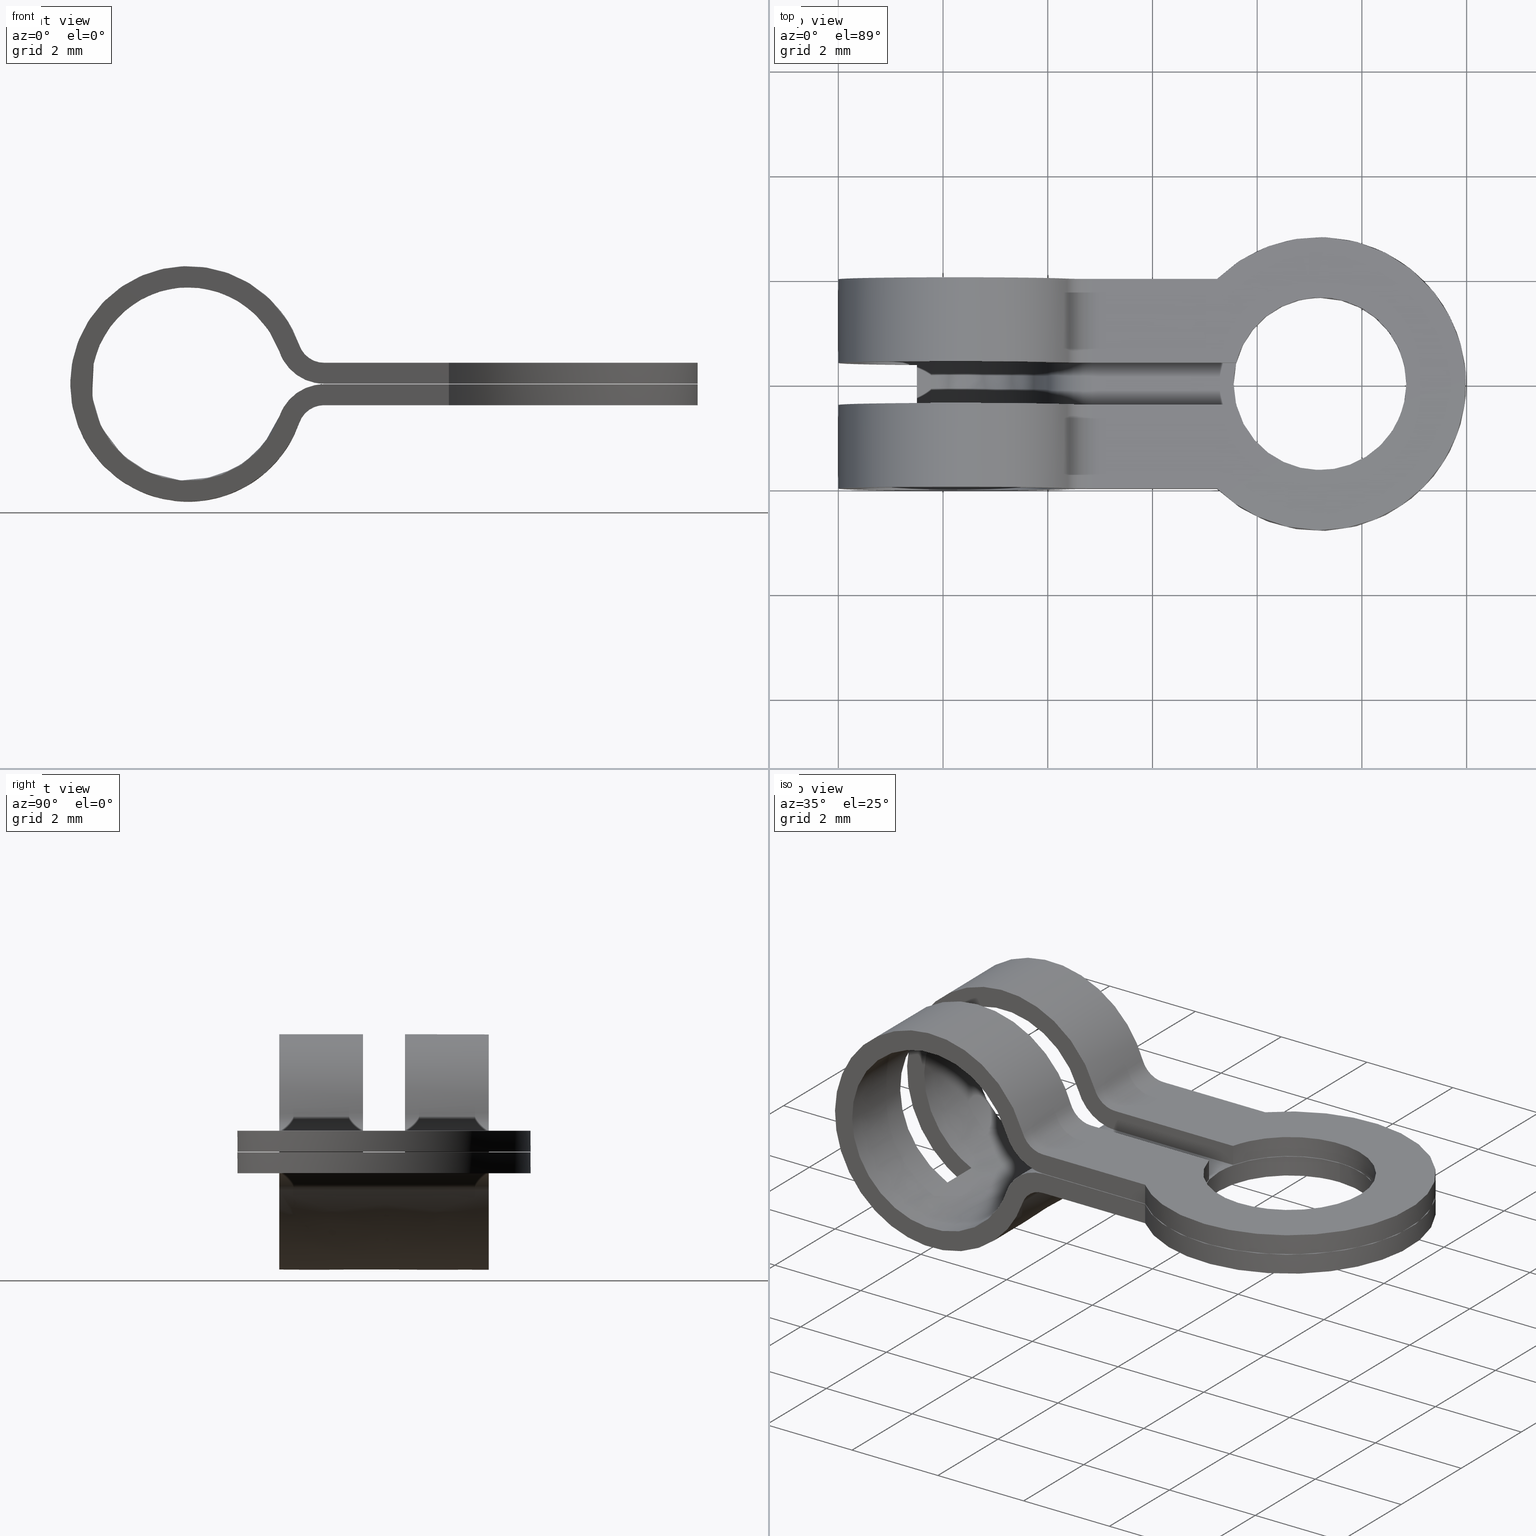
[diagram: canonical four-view strip — front | top / right | iso, engineering-drawing reading convention]
A machine part, canonical four-view strip (front | top / right | iso — engineering-drawing reading convention). The complete STEP part file that produces these views, byte-faithful:
ISO-10303-21;
HEADER;
/****************************************************************
 * Generated by software with PDE/Lib inside                    *
 * PDElib Version 4.4.1-0003, patched  Thursday August 19 11:58 *
 * International Technegroup Inc. (www.iti-oh.com)              *
 ****************************************************************/
FILE_DESCRIPTION((''),'2;1');
FILE_NAME('','2005-12-14T14:31:53',(''),(''),'','CADfix','');
FILE_SCHEMA(('AUTOMOTIVE_DESIGN'));
ENDSEC;
DATA;
#5=APPLICATION_CONTEXT('automotive design');
#6=APPLICATION_PROTOCOL_DEFINITION('Draft International Standard','automotive_design',1998,#5);
#7=PRODUCT_CONTEXT('None',#5,'mechanical');
#8=PRODUCT('terminal','','None',(#7));
#9=PRODUCT_RELATED_PRODUCT_CATEGORY('part','description',(#8));
#10=PRODUCT_DEFINITION_FORMATION('None','None',#8);
#11=PRODUCT_DEFINITION_CONTEXT('part definition',#5,'design');
#12=PRODUCT_DEFINITION('None','None',#10,#11);
#18=(NAMED_UNIT(*)PLANE_ANGLE_UNIT()SI_UNIT($,.RADIAN.));
#19=DIMENSIONAL_EXPONENTS(0.0,0.0,0.0,0.0,0.0,0.0,0.0);
#20=PLANE_ANGLE_MEASURE_WITH_UNIT(PLANE_ANGLE_MEASURE(0.017453292500000),#18);
#24=(CONVERSION_BASED_UNIT('DEGREE',#20)NAMED_UNIT(#19)PLANE_ANGLE_UNIT());
#28=(NAMED_UNIT(*)SI_UNIT($,.STERADIAN.)SOLID_ANGLE_UNIT());
#32=(LENGTH_UNIT()NAMED_UNIT(*)SI_UNIT(.MILLI.,.METRE.));
#34=UNCERTAINTY_MEASURE_WITH_UNIT(LENGTH_MEASURE(0.001000000000000),#32,'DISTANCE_ACCURACY_VALUE','');
#36=(GEOMETRIC_REPRESENTATION_CONTEXT(3)GLOBAL_UNCERTAINTY_ASSIGNED_CONTEXT((#34))GLOBAL_UNIT_ASSIGNED_CONTEXT((#24,#28,#32))REPRESENTATION_CONTEXT('None','None'));
#37=AXIS2_PLACEMENT_3D('',#38,#39,#40);
#38=CARTESIAN_POINT('',(0.0,0.0,0.0));
#39=DIRECTION('',(0.0,0.0,1.0));
#40=DIRECTION('',(1.0,0.0,0.0));
#41=ADVANCED_BREP_SHAPE_REPRESENTATION('',(#37,#1274),#36);
#42=PRODUCT_DEFINITION_SHAPE('','',#12);
#43=SHAPE_DEFINITION_REPRESENTATION(#42,#41);
#44=CARTESIAN_POINT('',(7.018306998561593,-1.640131235009191,0.004999999999966));
#45=CARTESIAN_POINT('',(7.006776362337770,-1.638688804724626,0.004999999999966));
#46=CARTESIAN_POINT('',(5.537240829670868,-1.454856575919814,0.004999999999966));
#47=CARTESIAN_POINT('',(5.550062826944018,0.014398783572317,0.004999999999966));
#48=CARTESIAN_POINT('',(5.564461610516335,1.664335956628199,0.004999999999966));
#49=CARTESIAN_POINT('',(7.225566488581230,1.649839713970743,0.004999999999966));
#50=CARTESIAN_POINT('',(7.236671748417312,1.649742799836371,0.004999999999966));
#51=CARTESIAN_POINT('',(7.018306998561593,-1.640131235009191,-0.415249999999987));
#52=CARTESIAN_POINT('',(7.006776362337770,-1.638688804724626,-0.415249999999987));
#53=CARTESIAN_POINT('',(5.537240829670868,-1.454856575919814,-0.415249999999987));
#54=CARTESIAN_POINT('',(5.550062826944018,0.014398783572317,-0.415249999999987));
#55=CARTESIAN_POINT('',(5.564461610516335,1.664335956628199,-0.415249999999987));
#56=CARTESIAN_POINT('',(7.225566488581230,1.649839713970743,-0.415249999999987));
#57=CARTESIAN_POINT('',(7.236671748417312,1.649742799836371,-0.415249999999987));
#65=(BOUNDED_SURFACE()B_SPLINE_SURFACE(2,1,((#44,#51),(#45,#52),(#46,#53),(#47,#54),(#48,#55),(#49,#56),(#50,#57)),.UNSPECIFIED.,.F.,.F.,.U.)B_SPLINE_SURFACE_WITH_KNOTS((3,1,2,1,3),(2,2),(3.252174809661496,3.267256359733385,4.712388980384690,6.283185307179586,6.298263549299607),(0.0,0.420249999999954),.UNSPECIFIED.)GEOMETRIC_REPRESENTATION_ITEM()RATIONAL_B_SPLINE_SURFACE(((0.961610496880267,0.961610496880267),(0.959248307535463,0.959248307535463),(0.730538238691624,0.730538238691624),(1.0,1.0),(0.707106781186548,0.707106781186548),(1.002811513366340,1.002811513366340),(1.005623026732680,1.005623026732680)))REPRESENTATION_ITEM('')SURFACE());
#66=CARTESIAN_POINT('',(5.549999999999900,0.0,-0.005000000000033));
#67=VERTEX_POINT('',#66);
#68=CARTESIAN_POINT('',(6.995189237075451,-1.637239307917479,-0.005000000000076));
#69=VERTEX_POINT('',#68);
#70=CARTESIAN_POINT('',(5.549999999999900,0.0,-0.005000000000033));
#71=CARTESIAN_POINT('',(5.549999999999901,-1.456453480088002,-0.005000000000033));
#72=CARTESIAN_POINT('',(6.995189237075451,-1.637239307917480,-0.005000000000076));
#80=(BOUNDED_CURVE()B_SPLINE_CURVE(2,(#70,#71,#72),.UNSPECIFIED.,.F.,.U.)B_SPLINE_CURVE_WITH_KNOTS((3,3),(0.0,0.228526161779335),.UNSPECIFIED.)CURVE()GEOMETRIC_REPRESENTATION_ITEM()RATIONAL_B_SPLINE_CURVE((1.0,0.732264947573467,0.954005606385532))REPRESENTATION_ITEM(''));
#81=EDGE_CURVE('',#67,#69,#80,.T.);
#82=ORIENTED_EDGE('',*,*,#81,.T.);
#83=CARTESIAN_POINT('',(6.995191728317886,-1.637239619555395,-0.404999999999988));
#84=VERTEX_POINT('',#83);
#85=CARTESIAN_POINT('',(6.995189237075451,-1.637239307917479,-0.005000000000076));
#86=CARTESIAN_POINT('',(6.995191728317886,-1.637239619555395,-0.404999999999988));
#87=QUASI_UNIFORM_CURVE('',1,(#85,#86),.UNSPECIFIED.,.F.,.U.);
#88=EDGE_CURVE('',#69,#84,#87,.T.);
#89=ORIENTED_EDGE('',*,*,#88,.T.);
#90=CARTESIAN_POINT('',(5.549999999999900,0.0,-0.404999999999988));
#91=VERTEX_POINT('',#90);
#92=CARTESIAN_POINT('',(6.995191728317886,-1.637239619555395,-0.404999999999989));
#93=CARTESIAN_POINT('',(5.549999999999900,-1.456455318597689,-0.404999999999988));
#94=CARTESIAN_POINT('',(5.549999999999900,0.0,-0.404999999999988));
#102=(BOUNDED_CURVE()B_SPLINE_CURVE(2,(#92,#93,#94),.UNSPECIFIED.,.F.,.U.)B_SPLINE_CURVE_WITH_KNOTS((3,3),(0.271473626982041,0.500000000000000),.UNSPECIFIED.)CURVE()GEOMETRIC_REPRESENTATION_ITEM()RATIONAL_B_SPLINE_CURVE((0.954006016318810,0.732264700092025,1.0))REPRESENTATION_ITEM(''));
#103=EDGE_CURVE('',#84,#91,#102,.T.);
#104=ORIENTED_EDGE('',*,*,#103,.T.);
#105=CARTESIAN_POINT('',(7.214396397205785,1.649937193877935,-0.404999999999988));
#106=VERTEX_POINT('',#105);
#107=CARTESIAN_POINT('',(5.549999999999900,0.0,-0.404999999999988));
#108=CARTESIAN_POINT('',(5.549999999999900,1.649999999999999,-0.404999999999988));
#109=CARTESIAN_POINT('',(7.199999999999900,1.650000000000000,-0.404999999999988));
#110=CARTESIAN_POINT('',(7.207198335602708,1.650000000000000,-0.404999999999988));
#111=CARTESIAN_POINT('',(7.214396397205785,1.649937193877935,-0.404999999999988));
#119=(BOUNDED_CURVE()B_SPLINE_CURVE(2,(#107,#108,#109,#110,#111),.UNSPECIFIED.,.F.,.U.)B_SPLINE_CURVE_WITH_KNOTS((3,2,3),(0.500000000000000,0.750000000000000,0.751539639572963),.UNSPECIFIED.)CURVE()GEOMETRIC_REPRESENTATION_ITEM()RATIONAL_B_SPLINE_CURVE((1.0,0.707106781186548,1.0,0.998196200038650,0.996414617691717))REPRESENTATION_ITEM(''));
#120=EDGE_CURVE('',#91,#106,#119,.T.);
#121=ORIENTED_EDGE('',*,*,#120,.T.);
#122=CARTESIAN_POINT('',(7.214396696831251,1.649937191263956,-0.004999999999926));
#123=VERTEX_POINT('',#122);
#124=CARTESIAN_POINT('',(7.214396696831251,1.649937191263956,-0.004999999999926));
#125=CARTESIAN_POINT('',(7.214396397205785,1.649937193877935,-0.404999999999988));
#126=QUASI_UNIFORM_CURVE('',1,(#124,#125),.UNSPECIFIED.,.F.,.U.);
#127=EDGE_CURVE('',#123,#106,#126,.T.);
#128=ORIENTED_EDGE('',*,*,#127,.F.);
#129=CARTESIAN_POINT('',(7.214396696831251,1.649937191263956,-0.004999999999926));
#130=CARTESIAN_POINT('',(7.207198485423994,1.650000000000000,-0.005000000000033));
#131=CARTESIAN_POINT('',(7.199999999999900,1.650000000000000,-0.005000000000033));
#132=CARTESIAN_POINT('',(5.549999999999900,1.649999999999999,-0.005000000000033));
#133=CARTESIAN_POINT('',(5.549999999999900,0.0,-0.005000000000033));
#141=(BOUNDED_CURVE()B_SPLINE_CURVE(2,(#129,#130,#131,#132,#133),.UNSPECIFIED.,.F.,.U.)B_SPLINE_CURVE_WITH_KNOTS((3,2,3),(0.748460328439825,0.750000000000000,1.0),.UNSPECIFIED.)CURVE()GEOMETRIC_REPRESENTATION_ITEM()RATIONAL_B_SPLINE_CURVE((0.996414543664202,0.998196162563299,1.0,0.707106781186548,1.0))REPRESENTATION_ITEM(''));
#142=EDGE_CURVE('',#123,#67,#141,.T.);
#143=ORIENTED_EDGE('',*,*,#142,.T.);
#144=EDGE_LOOP('',(#82,#89,#104,#121,#128,#143));
#145=FACE_OUTER_BOUND('',#144,.T.);
#146=ADVANCED_FACE('',(#145),#65,.F.);
#147=CARTESIAN_POINT('',(7.214398783572217,1.649937173055882,0.004999999999966));
#148=CARTESIAN_POINT('',(8.864335956628100,1.635538389483566,0.004999999999966));
#149=CARTESIAN_POINT('',(8.849937173055782,-0.014398783572317,0.004999999999966));
#150=CARTESIAN_POINT('',(8.835538389483464,-1.664335956628199,0.004999999999966));
#151=CARTESIAN_POINT('',(7.185601216427583,-1.649937173055882,0.004999999999966));
#152=CARTESIAN_POINT('',(7.090027237718915,-1.649103111579455,0.004999999999966));
#153=CARTESIAN_POINT('',(6.995188796568183,-1.637239252812138,0.004999999999966));
#154=CARTESIAN_POINT('',(7.214398783572217,1.649937173055882,-0.415249999999987));
#155=CARTESIAN_POINT('',(8.864335956628100,1.635538389483566,-0.415249999999987));
#156=CARTESIAN_POINT('',(8.849937173055782,-0.014398783572317,-0.415249999999987));
#157=CARTESIAN_POINT('',(8.835538389483464,-1.664335956628199,-0.415249999999987));
#158=CARTESIAN_POINT('',(7.185601216427583,-1.649937173055882,-0.415249999999987));
#159=CARTESIAN_POINT('',(7.090027237718915,-1.649103111579455,-0.415249999999987));
#160=CARTESIAN_POINT('',(6.995188796568183,-1.637239252812138,-0.415249999999987));
#168=(BOUNDED_SURFACE()B_SPLINE_SURFACE(2,1,((#147,#154),(#148,#155),(#149,#156),(#150,#157),(#151,#158),(#152,#159),(#153,#160)),.UNSPECIFIED.,.F.,.F.,.U.)B_SPLINE_SURFACE_WITH_KNOTS((3,2,2,3),(2,2),(0.0,1.570796326794897,3.141592653589793,3.267256359733385),(0.0,0.420249999999954),.UNSPECIFIED.)GEOMETRIC_REPRESENTATION_ITEM()RATIONAL_B_SPLINE_SURFACE(((1.0,1.0),(0.707106781186548,0.707106781186548),(1.0,1.0),(0.707106781186548,0.707106781186548),(1.0,1.0),(0.976568542494924,0.976568542494924),(0.956886118190660,0.956886118190660)))REPRESENTATION_ITEM('')SURFACE());
#169=CARTESIAN_POINT('',(8.849999999999900,0.0,-0.005000000000033));
#170=VERTEX_POINT('',#169);
#171=CARTESIAN_POINT('',(6.995189237075450,-1.637239307917479,-0.005000000000076));
#172=CARTESIAN_POINT('',(7.097197315233557,-1.650000000000000,-0.005000000000033));
#173=CARTESIAN_POINT('',(7.199999999999900,-1.650000000000000,-0.005000000000033));
#174=CARTESIAN_POINT('',(8.849999999999902,-1.649999999999999,-0.005000000000033));
#175=CARTESIAN_POINT('',(8.849999999999900,0.0,-0.005000000000033));
#183=(BOUNDED_CURVE()B_SPLINE_CURVE(2,(#171,#172,#173,#174,#175),.UNSPECIFIED.,.F.,.U.)B_SPLINE_CURVE_WITH_KNOTS((3,2,3),(0.228526161779336,0.250000000000000,0.500000000000000),.UNSPECIFIED.)CURVE()GEOMETRIC_REPRESENTATION_ITEM()RATIONAL_B_SPLINE_CURVE((0.954005606385532,0.974841833613081,1.0,0.707106781186548,1.0))REPRESENTATION_ITEM(''));
#184=EDGE_CURVE('',#69,#170,#183,.T.);
#185=ORIENTED_EDGE('',*,*,#184,.T.);
#186=CARTESIAN_POINT('',(8.849999999999900,0.0,-0.005000000000033));
#187=CARTESIAN_POINT('',(8.849999999999900,1.635665566250241,-0.005000000000033));
#188=CARTESIAN_POINT('',(7.214396696831251,1.649937191263956,-0.004999999999926));
#196=(BOUNDED_CURVE()B_SPLINE_CURVE(2,(#186,#187,#188),.UNSPECIFIED.,.F.,.U.)B_SPLINE_CURVE_WITH_KNOTS((3,3),(0.500000000000000,0.748460328439825),.UNSPECIFIED.)CURVE()GEOMETRIC_REPRESENTATION_ITEM()RATIONAL_B_SPLINE_CURVE((1.0,0.708910618623248,0.996414543664202))REPRESENTATION_ITEM(''));
#197=EDGE_CURVE('',#170,#123,#196,.T.);
#198=ORIENTED_EDGE('',*,*,#197,.T.);
#199=ORIENTED_EDGE('',*,*,#127,.T.);
#200=CARTESIAN_POINT('',(8.849999999999900,0.0,-0.404999999999988));
#201=VERTEX_POINT('',#200);
#202=CARTESIAN_POINT('',(7.214396397205785,1.649937193877935,-0.404999999999988));
#203=CARTESIAN_POINT('',(8.849999999999900,1.635665863295339,-0.404999999999988));
#204=CARTESIAN_POINT('',(8.849999999999900,0.0,-0.404999999999988));
#212=(BOUNDED_CURVE()B_SPLINE_CURVE(2,(#202,#203,#204),.UNSPECIFIED.,.F.,.U.)B_SPLINE_CURVE_WITH_KNOTS((3,3),(0.751539639572963,1.0),.UNSPECIFIED.)CURVE()GEOMETRIC_REPRESENTATION_ITEM()RATIONAL_B_SPLINE_CURVE((0.996414617691717,0.708910581147898,1.0))REPRESENTATION_ITEM(''));
#213=EDGE_CURVE('',#106,#201,#212,.T.);
#214=ORIENTED_EDGE('',*,*,#213,.T.);
#215=CARTESIAN_POINT('',(8.849999999999900,0.0,-0.404999999999988));
#216=CARTESIAN_POINT('',(8.849999999999902,-1.649999999999999,-0.404999999999988));
#217=CARTESIAN_POINT('',(7.199999999999900,-1.650000000000000,-0.404999999999988));
#218=CARTESIAN_POINT('',(7.097198352603931,-1.650000000000000,-0.404999999999988));
#219=CARTESIAN_POINT('',(6.995191728317886,-1.637239619555395,-0.404999999999988));
#227=(BOUNDED_CURVE()B_SPLINE_CURVE(2,(#215,#216,#217,#218,#219),.UNSPECIFIED.,.F.,.U.)B_SPLINE_CURVE_WITH_KNOTS((3,2,3),(0.0,0.250000000000000,0.271473626982041),.UNSPECIFIED.)CURVE()GEOMETRIC_REPRESENTATION_ITEM()RATIONAL_B_SPLINE_CURVE((1.0,0.707106781186548,1.0,0.974842081094523,0.954006016318810))REPRESENTATION_ITEM(''));
#228=EDGE_CURVE('',#201,#84,#227,.T.);
#229=ORIENTED_EDGE('',*,*,#228,.T.);
#230=ORIENTED_EDGE('',*,*,#88,.F.);
#231=EDGE_LOOP('',(#185,#198,#199,#214,#229,#230));
#232=FACE_OUTER_BOUND('',#231,.T.);
#233=ADVANCED_FACE('',(#232),#168,.F.);
#234=CARTESIAN_POINT('',(-2.379118236689727,0.400000000000013,-2.339634547686690));
#235=CARTESIAN_POINT('',(-2.379118236689727,0.400000000000013,2.467650605610666));
#236=CARTESIAN_POINT('',(5.978777532452883,0.400000000000013,-2.339634547686690));
#237=CARTESIAN_POINT('',(5.978777532452883,0.400000000000013,2.467650605610666));
#238=B_SPLINE_SURFACE_WITH_KNOTS('',1,1,((#234,#236),(#235,#237)),.UNSPECIFIED.,.F.,.F.,.U.,(2,2),(2,2),(0.0,4.807285153297356),(0.0,8.357895769142608),.UNSPECIFIED.);
#239=CARTESIAN_POINT('',(-0.500000000000199,0.400000000000067,-1.691153452528690));
#240=VERTEX_POINT('',#239);
#241=CARTESIAN_POINT('',(-0.500000000000199,0.400000000000067,-2.121320343559570));
#242=VERTEX_POINT('',#241);
#243=CARTESIAN_POINT('',(-0.500000000000199,0.400000000000067,-1.691153452528690));
#244=CARTESIAN_POINT('',(-0.500000000000199,0.400000000000067,-2.121320343559570));
#245=QUASI_UNIFORM_CURVE('',1,(#243,#244),.UNSPECIFIED.,.F.,.U.);
#246=EDGE_CURVE('',#240,#242,#245,.T.);
#247=ORIENTED_EDGE('',*,*,#246,.F.);
#248=CARTESIAN_POINT('',(1.996951751333620,0.399999999999956,0.608818181818182));
#249=VERTEX_POINT('',#248);
#250=CARTESIAN_POINT('',(1.996951751333620,0.399999999999956,0.608818181818182));
#251=CARTESIAN_POINT('',(1.524505772812885,0.400000000000067,1.964461548319685));
#252=CARTESIAN_POINT('',(0.094008977677152,0.400000000000067,1.843411728549722));
#253=CARTESIAN_POINT('',(-1.336487817458581,0.400000000000067,1.722361908779758));
#254=CARTESIAN_POINT('',(-1.574415711386923,0.400000000000067,0.306606118733054));
#255=CARTESIAN_POINT('',(-1.812343605315266,0.400000000000067,-1.109149671313651));
#256=CARTESIAN_POINT('',(-0.500000000000199,0.400000000000067,-1.691153452528688));
#264=(BOUNDED_CURVE()B_SPLINE_CURVE(2,(#250,#251,#252,#253,#254,#255,#256),.UNSPECIFIED.,.F.,.U.)B_SPLINE_CURVE_WITH_KNOTS((3,2,2,3),(0.0,0.333333333333333,0.666666666666667,1.0),.UNSPECIFIED.)CURVE()GEOMETRIC_REPRESENTATION_ITEM()RATIONAL_B_SPLINE_CURVE((1.0,0.790030446406739,1.0,0.790030446406739,1.0,0.790030446406739,1.0))REPRESENTATION_ITEM(''));
#265=EDGE_CURVE('',#249,#240,#264,.T.);
#266=ORIENTED_EDGE('',*,*,#265,.F.);
#267=CARTESIAN_POINT('',(2.846820170901330,0.399999999999956,0.005000000000000));
#268=VERTEX_POINT('',#267);
#269=CARTESIAN_POINT('',(1.996951751333622,0.399999999999956,0.608818181818183));
#270=CARTESIAN_POINT('',(2.207384287505652,0.399999999999956,0.005000000000000));
#271=CARTESIAN_POINT('',(2.846820170901330,0.399999999999956,0.005000000000000));
#279=(BOUNDED_CURVE()B_SPLINE_CURVE(2,(#269,#270,#271),.UNSPECIFIED.,.F.,.U.)CURVE()GEOMETRIC_REPRESENTATION_ITEM()QUASI_UNIFORM_CURVE()RATIONAL_B_SPLINE_CURVE((1.0,0.815196574174262,1.0))REPRESENTATION_ITEM(''));
#280=EDGE_CURVE('',#249,#268,#279,.T.);
#281=ORIENTED_EDGE('',*,*,#280,.T.);
#282=CARTESIAN_POINT('',(5.599218940641681,0.399999999999956,0.005000000000033));
#283=VERTEX_POINT('',#282);
#284=CARTESIAN_POINT('',(5.599218940641681,0.399999999999956,0.005000000000033));
#285=CARTESIAN_POINT('',(2.846820170901330,0.399999999999956,0.005000000000000));
#286=QUASI_UNIFORM_CURVE('',1,(#284,#285),.UNSPECIFIED.,.F.,.U.);
#287=EDGE_CURVE('',#283,#268,#286,.T.);
#288=ORIENTED_EDGE('',*,*,#287,.F.);
#289=CARTESIAN_POINT('',(5.599218940641690,0.400000000000006,0.404999999999988));
#290=VERTEX_POINT('',#289);
#291=CARTESIAN_POINT('',(5.599218940641681,0.399999999999956,0.005000000000033));
#292=CARTESIAN_POINT('',(5.599218940641690,0.400000000000006,0.404999999999988));
#293=QUASI_UNIFORM_CURVE('',1,(#291,#292),.UNSPECIFIED.,.F.,.U.);
#294=EDGE_CURVE('',#283,#290,#293,.T.);
#295=ORIENTED_EDGE('',*,*,#294,.T.);
#296=CARTESIAN_POINT('',(2.846820170901330,0.399999999999956,0.405000000000000));
#297=VERTEX_POINT('',#296);
#298=CARTESIAN_POINT('',(2.846820170901330,0.399999999999956,0.405000000000000));
#299=CARTESIAN_POINT('',(5.599218940641690,0.400000000000006,0.404999999999988));
#300=QUASI_UNIFORM_CURVE('',1,(#298,#299),.UNSPECIFIED.,.F.,.U.);
#301=EDGE_CURVE('',#297,#290,#300,.T.);
#302=ORIENTED_EDGE('',*,*,#301,.F.);
#303=CARTESIAN_POINT('',(2.374671048919270,0.399999999999956,0.740454545454545));
#304=VERTEX_POINT('',#303);
#305=CARTESIAN_POINT('',(2.374671048919270,0.399999999999956,0.740454545454545));
#306=CARTESIAN_POINT('',(2.491578013459288,0.399999999999956,0.405000000000000));
#307=CARTESIAN_POINT('',(2.846820170901330,0.399999999999956,0.405000000000000));
#315=(BOUNDED_CURVE()B_SPLINE_CURVE(2,(#305,#306,#307),.UNSPECIFIED.,.F.,.U.)CURVE()GEOMETRIC_REPRESENTATION_ITEM()QUASI_UNIFORM_CURVE()RATIONAL_B_SPLINE_CURVE((1.0,0.815196574174263,1.0))REPRESENTATION_ITEM(''));
#316=EDGE_CURVE('',#304,#297,#315,.T.);
#317=ORIENTED_EDGE('',*,*,#316,.F.);
#318=CARTESIAN_POINT('',(2.374671048919270,0.399999999999956,0.740454545454545));
#319=CARTESIAN_POINT('',(1.784577730629924,0.400000000000067,2.433676900866554));
#320=CARTESIAN_POINT('',(0.002369296627667,0.400000000000067,2.236331602143860));
#321=CARTESIAN_POINT('',(-1.779839137374589,0.400000000000067,2.038986303421166));
#322=CARTESIAN_POINT('',(-1.985195601071888,0.400000000000067,0.257683187167656));
#323=CARTESIAN_POINT('',(-2.190552064769187,0.400000000000067,-1.523619929085855));
#324=CARTESIAN_POINT('',(-0.500000000000202,0.400000000000067,-2.121320343559571));
#332=(BOUNDED_CURVE()B_SPLINE_CURVE(2,(#318,#319,#320,#321,#322,#323,#324),.UNSPECIFIED.,.F.,.U.)B_SPLINE_CURVE_WITH_KNOTS((3,2,2,3),(0.0,0.333333333333333,0.666666666666667,1.0),.UNSPECIFIED.)CURVE()GEOMETRIC_REPRESENTATION_ITEM()RATIONAL_B_SPLINE_CURVE((1.0,0.782037106484249,1.0,0.782037106484249,1.0,0.782037106484249,1.0))REPRESENTATION_ITEM(''));
#333=EDGE_CURVE('',#304,#242,#332,.T.);
#334=ORIENTED_EDGE('',*,*,#333,.T.);
#335=EDGE_LOOP('',(#247,#266,#281,#288,#295,#302,#317,#334));
#336=FACE_OUTER_BOUND('',#335,.T.);
#337=ADVANCED_FACE('',(#336),#238,.F.);
#338=CARTESIAN_POINT('',(-2.379118255762652,-0.400000000000013,2.467650540796390));
#339=CARTESIAN_POINT('',(-2.379118255762652,-0.400000000000013,-2.339634421796019));
#340=CARTESIAN_POINT('',(5.978777533360306,-0.400000000000013,2.467650540796390));
#341=CARTESIAN_POINT('',(5.978777533360306,-0.400000000000013,-2.339634421796019));
#342=B_SPLINE_SURFACE_WITH_KNOTS('',1,1,((#338,#340),(#339,#341)),.UNSPECIFIED.,.F.,.F.,.U.,(2,2),(2,2),(0.0,4.807284962592409),(0.0,8.357895789122958),.UNSPECIFIED.);
#343=CARTESIAN_POINT('',(-0.500000000000199,-0.400000000000067,-2.121320343559570));
#344=VERTEX_POINT('',#343);
#345=CARTESIAN_POINT('',(2.374671048919270,-0.400000000000178,0.740454545454545));
#346=VERTEX_POINT('',#345);
#347=CARTESIAN_POINT('',(-0.500000000000199,-0.400000000000067,-2.121320343559572));
#348=CARTESIAN_POINT('',(-2.190552064769185,-0.400000000000067,-1.523619929085859));
#349=CARTESIAN_POINT('',(-1.985195601071888,-0.400000000000067,0.257683187167652));
#350=CARTESIAN_POINT('',(-1.779839137374592,-0.400000000000067,2.038986303421163));
#351=CARTESIAN_POINT('',(0.002369296627665,-0.400000000000067,2.236331602143860));
#352=CARTESIAN_POINT('',(1.784577730629923,-0.400000000000067,2.433676900866556));
#353=CARTESIAN_POINT('',(2.374671048919270,-0.400000000000178,0.740454545454545));
#361=(BOUNDED_CURVE()B_SPLINE_CURVE(2,(#347,#348,#349,#350,#351,#352,#353),.UNSPECIFIED.,.F.,.U.)B_SPLINE_CURVE_WITH_KNOTS((3,2,2,3),(0.0,0.333333333333333,0.666666666666667,1.0),.UNSPECIFIED.)CURVE()GEOMETRIC_REPRESENTATION_ITEM()RATIONAL_B_SPLINE_CURVE((1.0,0.782037106484249,1.0,0.782037106484249,1.0,0.782037106484249,1.0))REPRESENTATION_ITEM(''));
#362=EDGE_CURVE('',#344,#346,#361,.T.);
#363=ORIENTED_EDGE('',*,*,#362,.T.);
#364=CARTESIAN_POINT('',(2.846820170901330,-0.400000000000178,0.405000000000000));
#365=VERTEX_POINT('',#364);
#366=CARTESIAN_POINT('',(2.846820170901330,-0.400000000000178,0.405000000000000));
#367=CARTESIAN_POINT('',(2.491578013459288,-0.400000000000178,0.405000000000000));
#368=CARTESIAN_POINT('',(2.374671048919270,-0.400000000000178,0.740454545454545));
#376=(BOUNDED_CURVE()B_SPLINE_CURVE(2,(#366,#367,#368),.UNSPECIFIED.,.F.,.U.)CURVE()GEOMETRIC_REPRESENTATION_ITEM()QUASI_UNIFORM_CURVE()RATIONAL_B_SPLINE_CURVE((1.0,0.815196574174263,1.0))REPRESENTATION_ITEM(''));
#377=EDGE_CURVE('',#365,#346,#376,.T.);
#378=ORIENTED_EDGE('',*,*,#377,.F.);
#379=CARTESIAN_POINT('',(5.599218940641740,-0.400000000000205,0.404999999999988));
#380=VERTEX_POINT('',#379);
#381=CARTESIAN_POINT('',(5.599218940641740,-0.400000000000205,0.404999999999988));
#382=CARTESIAN_POINT('',(2.846820170901330,-0.400000000000178,0.405000000000000));
#383=QUASI_UNIFORM_CURVE('',1,(#381,#382),.UNSPECIFIED.,.F.,.U.);
#384=EDGE_CURVE('',#380,#365,#383,.T.);
#385=ORIENTED_EDGE('',*,*,#384,.F.);
#386=CARTESIAN_POINT('',(5.599218940641740,-0.400000000000178,0.005000000000033));
#387=VERTEX_POINT('',#386);
#388=CARTESIAN_POINT('',(5.599218940641740,-0.400000000000205,0.404999999999988));
#389=CARTESIAN_POINT('',(5.599218940641740,-0.400000000000178,0.005000000000033));
#390=QUASI_UNIFORM_CURVE('',1,(#388,#389),.UNSPECIFIED.,.F.,.U.);
#391=EDGE_CURVE('',#380,#387,#390,.T.);
#392=ORIENTED_EDGE('',*,*,#391,.T.);
#393=CARTESIAN_POINT('',(2.846820170901330,-0.400000000000178,0.005000000000000));
#394=VERTEX_POINT('',#393);
#395=CARTESIAN_POINT('',(2.846820170901330,-0.400000000000178,0.005000000000000));
#396=CARTESIAN_POINT('',(5.599218940641740,-0.400000000000178,0.005000000000033));
#397=QUASI_UNIFORM_CURVE('',1,(#395,#396),.UNSPECIFIED.,.F.,.U.);
#398=EDGE_CURVE('',#394,#387,#397,.T.);
#399=ORIENTED_EDGE('',*,*,#398,.F.);
#400=CARTESIAN_POINT('',(1.996951751333620,-0.400000000000178,0.608818181818182));
#401=VERTEX_POINT('',#400);
#402=CARTESIAN_POINT('',(2.846820170901330,-0.400000000000178,0.005000000000000));
#403=CARTESIAN_POINT('',(2.207384287505654,-0.400000000000178,0.005000000000000));
#404=CARTESIAN_POINT('',(1.996951751333622,-0.400000000000178,0.608818181818183));
#412=(BOUNDED_CURVE()B_SPLINE_CURVE(2,(#402,#403,#404),.UNSPECIFIED.,.F.,.U.)CURVE()GEOMETRIC_REPRESENTATION_ITEM()QUASI_UNIFORM_CURVE()RATIONAL_B_SPLINE_CURVE((1.0,0.815196574174262,1.0))REPRESENTATION_ITEM(''));
#413=EDGE_CURVE('',#394,#401,#412,.T.);
#414=ORIENTED_EDGE('',*,*,#413,.T.);
#415=CARTESIAN_POINT('',(-0.500000000000199,-0.400000000000067,-1.691153452528690));
#416=VERTEX_POINT('',#415);
#417=CARTESIAN_POINT('',(-0.500000000000198,-0.400000000000067,-1.691153452528688));
#418=CARTESIAN_POINT('',(-1.812343605315265,-0.400000000000067,-1.109149671313652));
#419=CARTESIAN_POINT('',(-1.574415711386923,-0.400000000000067,0.306606118733053));
#420=CARTESIAN_POINT('',(-1.336487817458583,-0.400000000000067,1.722361908779757));
#421=CARTESIAN_POINT('',(0.094008977677151,-0.400000000000067,1.843411728549722));
#422=CARTESIAN_POINT('',(1.524505772812886,-0.400000000000067,1.964461548319686));
#423=CARTESIAN_POINT('',(1.996951751333620,-0.400000000000178,0.608818181818182));
#431=(BOUNDED_CURVE()B_SPLINE_CURVE(2,(#417,#418,#419,#420,#421,#422,#423),.UNSPECIFIED.,.F.,.U.)B_SPLINE_CURVE_WITH_KNOTS((3,2,2,3),(0.0,0.333333333333333,0.666666666666667,1.0),.UNSPECIFIED.)CURVE()GEOMETRIC_REPRESENTATION_ITEM()RATIONAL_B_SPLINE_CURVE((1.0,0.790030446406739,1.0,0.790030446406739,1.0,0.790030446406739,1.0))REPRESENTATION_ITEM(''));
#432=EDGE_CURVE('',#416,#401,#431,.T.);
#433=ORIENTED_EDGE('',*,*,#432,.F.);
#434=CARTESIAN_POINT('',(-0.500000000000199,-0.400000000000067,-1.691153452528690));
#435=CARTESIAN_POINT('',(-0.500000000000199,-0.400000000000067,-2.121320343559570));
#436=QUASI_UNIFORM_CURVE('',1,(#434,#435),.UNSPECIFIED.,.F.,.U.);
#437=EDGE_CURVE('',#416,#344,#436,.T.);
#438=ORIENTED_EDGE('',*,*,#437,.T.);
#439=EDGE_LOOP('',(#363,#378,#385,#392,#399,#414,#433,#438));
#440=FACE_OUTER_BOUND('',#439,.T.);
#441=ADVANCED_FACE('',(#440),#342,.F.);
#442=CARTESIAN_POINT('',(-0.500000000000199,-0.439960005959346,-1.669666573308831));
#443=CARTESIAN_POINT('',(-0.500000000000199,-0.439960005959346,-2.142807095861702));
#444=CARTESIAN_POINT('',(-0.500000000000199,0.439960020264461,-1.669666573308831));
#445=CARTESIAN_POINT('',(-0.500000000000199,0.439960020264461,-2.142807095861702));
#446=B_SPLINE_SURFACE_WITH_KNOTS('',1,1,((#442,#444),(#443,#445)),.UNSPECIFIED.,.F.,.F.,.U.,(2,2),(2,2),(0.041708250007406,0.958291504123434),(0.041708327125758,0.958291687775403),.UNSPECIFIED.);
#447=CARTESIAN_POINT('',(-0.500000000000199,0.400000000000067,-2.121320343559570));
#448=CARTESIAN_POINT('',(-0.500000000000199,-0.400000000000067,-2.121320343559570));
#449=QUASI_UNIFORM_CURVE('',1,(#447,#448),.UNSPECIFIED.,.F.,.U.);
#450=EDGE_CURVE('',#242,#344,#449,.T.);
#451=ORIENTED_EDGE('',*,*,#450,.T.);
#452=ORIENTED_EDGE('',*,*,#437,.F.);
#453=CARTESIAN_POINT('',(-0.500000000000199,0.400000000000067,-1.691153452528690));
#454=CARTESIAN_POINT('',(-0.500000000000199,-0.400000000000067,-1.691153452528690));
#455=QUASI_UNIFORM_CURVE('',1,(#453,#454),.UNSPECIFIED.,.F.,.U.);
#456=EDGE_CURVE('',#240,#416,#455,.T.);
#457=ORIENTED_EDGE('',*,*,#456,.F.);
#458=ORIENTED_EDGE('',*,*,#246,.T.);
#459=EDGE_LOOP('',(#451,#452,#457,#458));
#460=FACE_OUTER_BOUND('',#459,.T.);
#461=ADVANCED_FACE('',(#460),#446,.F.);
#462=CARTESIAN_POINT('',(5.583294774560065,-0.329794199517713,0.414999999999987));
#463=CARTESIAN_POINT('',(5.583294774560065,-0.329794199517713,-0.005249999999966));
#464=CARTESIAN_POINT('',(5.881548189109098,-1.791881326919717,0.414999999999987));
#465=CARTESIAN_POINT('',(5.881548189109098,-1.791881326919717,-0.005249999999966));
#466=CARTESIAN_POINT('',(7.366160283286852,-1.641612244184966,0.414999999999987));
#467=CARTESIAN_POINT('',(7.366160283286852,-1.641612244184966,-0.005249999999966));
#468=CARTESIAN_POINT('',(8.850772377464606,-1.491343161450216,0.414999999999987));
#469=CARTESIAN_POINT('',(8.850772377464606,-1.491343161450216,-0.005249999999966));
#470=CARTESIAN_POINT('',(8.849999778838601,0.000854302190628,0.414999999999987));
#471=CARTESIAN_POINT('',(8.849999778838601,0.000854302190628,-0.005249999999966));
#472=CARTESIAN_POINT('',(8.849227180212596,1.493051765831469,0.414999999999987));
#473=CARTESIAN_POINT('',(8.849227180212596,1.493051765831469,-0.005249999999966));
#474=CARTESIAN_POINT('',(7.364460275717356,1.641783425945985,0.414999999999987));
#475=CARTESIAN_POINT('',(7.364460275717356,1.641783425945985,-0.005249999999966));
#476=CARTESIAN_POINT('',(5.879693371222115,1.790515086060500,0.414999999999987));
#477=CARTESIAN_POINT('',(5.879693371222115,1.790515086060500,-0.005249999999966));
#478=CARTESIAN_POINT('',(5.582954133633836,0.328119895874096,0.414999999999987));
#479=CARTESIAN_POINT('',(5.582954133633836,0.328119895874096,-0.005249999999966));
#487=(BOUNDED_SURFACE()B_SPLINE_SURFACE(1,2,((#462,#464,#466,#468,#470,#472,#474,#476,#478),(#463,#465,#467,#469,#471,#473,#475,#477,#479)),.UNSPECIFIED.,.F.,.F.,.U.)B_SPLINE_SURFACE_WITH_KNOTS((2,2),(3,2,2,2,3),(0.0,0.420249999999954),(0.0,2.541766433328330,5.083532866656660,7.625299299984990,10.167065733313320),.UNSPECIFIED.)GEOMETRIC_REPRESENTATION_ITEM()RATIONAL_B_SPLINE_SURFACE(((1.0,0.741683241556689,1.0,0.741683241556689,1.0,0.741683241556689,1.0,0.741683241556689,1.0),(1.0,0.741683241556689,1.0,0.741683241556689,1.0,0.741683241556689,1.0,0.741683241556689,1.0)))REPRESENTATION_ITEM('')SURFACE());
#488=ORIENTED_EDGE('',*,*,#294,.F.);
#489=CARTESIAN_POINT('',(5.599218940641677,0.399999999999956,0.005000000000033));
#490=CARTESIAN_POINT('',(5.953016754140287,1.815882096727433,0.005000000000033));
#491=CARTESIAN_POINT('',(7.401508377070042,1.637649038704740,0.005000000000033));
#492=CARTESIAN_POINT('',(8.849999999999900,1.459415980682033,0.005000000000033));
#493=CARTESIAN_POINT('',(8.849999999999900,0.0,0.005000000000033));
#494=CARTESIAN_POINT('',(8.849999999999900,-1.459415980681826,0.005000000000033));
#495=CARTESIAN_POINT('',(7.401508377070272,-1.637649038704711,0.005000000000033));
#496=CARTESIAN_POINT('',(5.953016754140542,-1.815882096727609,0.005000000000033));
#497=CARTESIAN_POINT('',(5.599218940641733,-0.400000000000181,0.005000000000033));
#505=(BOUNDED_CURVE()B_SPLINE_CURVE(2,(#489,#490,#491,#492,#493,#494,#495,#496,#497),.UNSPECIFIED.,.F.,.U.)B_SPLINE_CURVE_WITH_KNOTS((3,2,2,2,3),(0.0,0.250000000000000,0.500000000000000,0.750000000000000,1.0),.UNSPECIFIED.)CURVE()GEOMETRIC_REPRESENTATION_ITEM()RATIONAL_B_SPLINE_CURVE((1.0,0.749041483875723,1.0,0.749041483875723,1.0,0.749041483875723,1.0,0.749041483875723,1.0))REPRESENTATION_ITEM(''));
#506=EDGE_CURVE('',#283,#387,#505,.T.);
#507=ORIENTED_EDGE('',*,*,#506,.T.);
#508=ORIENTED_EDGE('',*,*,#391,.F.);
#509=CARTESIAN_POINT('',(5.599218940641739,-0.400000000000205,0.404999999999988));
#510=CARTESIAN_POINT('',(5.953016754140565,-1.815882096727612,0.404999999999989));
#511=CARTESIAN_POINT('',(7.401508377070278,-1.637649038704711,0.404999999999988));
#512=CARTESIAN_POINT('',(8.849999999999900,-1.459415980681821,0.404999999999989));
#513=CARTESIAN_POINT('',(8.849999999999900,0.0,0.404999999999988));
#514=CARTESIAN_POINT('',(8.849999999999900,1.459415980682002,0.404999999999989));
#515=CARTESIAN_POINT('',(7.401508377070076,1.637649038704736,0.404999999999988));
#516=CARTESIAN_POINT('',(5.953016754140339,1.815882096727458,0.404999999999989));
#517=CARTESIAN_POINT('',(5.599218940641690,0.400000000000006,0.404999999999988));
#525=(BOUNDED_CURVE()B_SPLINE_CURVE(2,(#509,#510,#511,#512,#513,#514,#515,#516,#517),.UNSPECIFIED.,.F.,.U.)B_SPLINE_CURVE_WITH_KNOTS((3,2,2,2,3),(0.0,0.250000000000000,0.500000000000000,0.750000000000000,1.0),.UNSPECIFIED.)CURVE()GEOMETRIC_REPRESENTATION_ITEM()RATIONAL_B_SPLINE_CURVE((1.0,0.749041483875727,1.0,0.749041483875727,1.0,0.749041483875727,1.0,0.749041483875727,1.0))REPRESENTATION_ITEM(''));
#526=EDGE_CURVE('',#380,#290,#525,.T.);
#527=ORIENTED_EDGE('',*,*,#526,.T.);
#528=EDGE_LOOP('',(#488,#507,#508,#527));
#529=FACE_OUTER_BOUND('',#528,.T.);
#530=ADVANCED_FACE('',(#529),#487,.F.);
#531=CARTESIAN_POINT('',(1.988474915227926,2.099999999999775,-0.634364780446155));
#532=CARTESIAN_POINT('',(1.988474915227926,-2.102499999999995,-0.634364780446155));
#533=CARTESIAN_POINT('',(2.199198683167519,2.099999999999775,0.033965626685447));
#534=CARTESIAN_POINT('',(2.199198683167519,-2.102499999999995,0.033965626685447));
#535=CARTESIAN_POINT('',(2.898793149679431,2.099999999999775,-0.006501914594733));
#536=CARTESIAN_POINT('',(2.898793149679431,-2.102499999999994,-0.006501914594733));
#544=(BOUNDED_SURFACE()B_SPLINE_SURFACE(1,2,((#531,#533,#535),(#532,#534,#536)),.UNSPECIFIED.,.F.,.F.,.U.)B_SPLINE_SURFACE_WITH_KNOTS((2,2),(3,3),(0.0,4.202499999999770),(0.0,0.983385388070997),.UNSPECIFIED.)GEOMETRIC_REPRESENTATION_ITEM()RATIONAL_B_SPLINE_SURFACE(((1.0,0.786220037962842,0.992896257785111),(1.0,0.786220037962842,0.992896257785111)))REPRESENTATION_ITEM('')SURFACE());
#545=CARTESIAN_POINT('',(1.996951751333620,1.999999999999780,-0.608818181818182));
#546=VERTEX_POINT('',#545);
#547=CARTESIAN_POINT('',(2.846820170901330,1.999999999999780,-0.005000000000000));
#548=VERTEX_POINT('',#547);
#549=CARTESIAN_POINT('',(1.996951751333622,1.999999999999780,-0.608818181818183));
#550=CARTESIAN_POINT('',(2.207384287505652,1.999999999999781,-0.005000000000000));
#551=CARTESIAN_POINT('',(2.846820170901330,1.999999999999780,-0.005000000000000));
#559=(BOUNDED_CURVE()B_SPLINE_CURVE(2,(#549,#550,#551),.UNSPECIFIED.,.F.,.U.)CURVE()GEOMETRIC_REPRESENTATION_ITEM()QUASI_UNIFORM_CURVE()RATIONAL_B_SPLINE_CURVE((1.0,0.815196574174262,1.0))REPRESENTATION_ITEM(''));
#560=EDGE_CURVE('',#546,#548,#559,.T.);
#561=ORIENTED_EDGE('',*,*,#560,.F.);
#562=CARTESIAN_POINT('',(1.996951751333620,-2.0,-0.608818181818182));
#563=VERTEX_POINT('',#562);
#564=CARTESIAN_POINT('',(1.996951751333620,1.999999999999780,-0.608818181818182));
#565=CARTESIAN_POINT('',(1.996951751333620,-2.0,-0.608818181818182));
#566=QUASI_UNIFORM_CURVE('',1,(#564,#565),.UNSPECIFIED.,.F.,.U.);
#567=EDGE_CURVE('',#546,#563,#566,.T.);
#568=ORIENTED_EDGE('',*,*,#567,.T.);
#569=CARTESIAN_POINT('',(2.846820170901330,-2.0,-0.005000000000000));
#570=VERTEX_POINT('',#569);
#571=CARTESIAN_POINT('',(2.846820170901330,-2.0,-0.005000000000000));
#572=CARTESIAN_POINT('',(2.207384287505654,-2.000000000000000,-0.005000000000000));
#573=CARTESIAN_POINT('',(1.996951751333622,-2.0,-0.608818181818183));
#581=(BOUNDED_CURVE()B_SPLINE_CURVE(2,(#571,#572,#573),.UNSPECIFIED.,.F.,.U.)CURVE()GEOMETRIC_REPRESENTATION_ITEM()QUASI_UNIFORM_CURVE()RATIONAL_B_SPLINE_CURVE((1.0,0.815196574174262,1.0))REPRESENTATION_ITEM(''));
#582=EDGE_CURVE('',#570,#563,#581,.T.);
#583=ORIENTED_EDGE('',*,*,#582,.F.);
#584=CARTESIAN_POINT('',(2.846820170901330,1.999999999999780,-0.005000000000000));
#585=CARTESIAN_POINT('',(2.846820170901330,-2.0,-0.005000000000000));
#586=QUASI_UNIFORM_CURVE('',1,(#584,#585),.UNSPECIFIED.,.F.,.U.);
#587=EDGE_CURVE('',#548,#570,#586,.T.);
#588=ORIENTED_EDGE('',*,*,#587,.F.);
#589=EDGE_LOOP('',(#561,#568,#583,#588));
#590=FACE_OUTER_BOUND('',#589,.T.);
#591=ADVANCED_FACE('',(#590),#544,.T.);
#592=CARTESIAN_POINT('',(2.016438078010769,2.099999999999775,-0.549724036725354));
#593=CARTESIAN_POINT('',(2.016438078010769,-2.102499999999995,-0.549724036725354));
#594=CARTESIAN_POINT('',(1.538570263426619,2.099999999999775,-2.085265231113700));
#595=CARTESIAN_POINT('',(1.538570263426619,-2.102499999999995,-2.085265231113700));
#596=CARTESIAN_POINT('',(-0.048533495218139,2.099999999999775,-1.825754022926648));
#597=CARTESIAN_POINT('',(-0.048533495218139,-2.102499999999995,-1.825754022926648));
#598=CARTESIAN_POINT('',(-1.635637253862896,2.099999999999775,-1.566242814739597));
#599=CARTESIAN_POINT('',(-1.635637253862896,-2.102499999999995,-1.566242814739597));
#600=CARTESIAN_POINT('',(-1.599533742550680,2.099999999999775,0.041532338803321));
#601=CARTESIAN_POINT('',(-1.599533742550680,-2.102499999999995,0.041532338803321));
#602=CARTESIAN_POINT('',(-1.563430231238463,2.099999999999775,1.649307492346238));
#603=CARTESIAN_POINT('',(-1.563430231238463,-2.102499999999995,1.649307492346238));
#604=CARTESIAN_POINT('',(0.033722802656031,2.099999999999775,1.837314391689413));
#605=CARTESIAN_POINT('',(0.033722802656031,-2.102499999999995,1.837314391689413));
#606=CARTESIAN_POINT('',(1.630875836550525,2.099999999999775,2.025321291032588));
#607=CARTESIAN_POINT('',(1.630875836550525,-2.102499999999995,2.025321291032588));
#608=CARTESIAN_POINT('',(2.039333806108055,2.099999999999775,0.469877143856625));
#609=CARTESIAN_POINT('',(2.039333806108055,-2.102499999999995,0.469877143856625));
#617=(BOUNDED_SURFACE()B_SPLINE_SURFACE(1,2,((#592,#594,#596,#598,#600,#602,#604,#606,#608),(#593,#595,#597,#599,#601,#603,#605,#607,#609)),.UNSPECIFIED.,.F.,.F.,.U.)B_SPLINE_SURFACE_WITH_KNOTS((2,2),(3,2,2,2,3),(0.0,4.202499999999770),(0.0,2.766746628187554,5.533493256375108,8.300239884562661,11.066986512750219),.UNSPECIFIED.)GEOMETRIC_REPRESENTATION_ITEM()RATIONAL_B_SPLINE_SURFACE(((1.0,0.754709580222772,1.0,0.754709580222772,1.0,0.754709580222772,1.0,0.754709580222772,1.0),(1.0,0.754709580222772,1.0,0.754709580222772,1.0,0.754709580222772,1.0,0.754709580222772,1.0)))REPRESENTATION_ITEM('')SURFACE());
#618=CARTESIAN_POINT('',(1.996951751333620,1.999999999999780,0.608818181818182));
#619=VERTEX_POINT('',#618);
#620=CARTESIAN_POINT('',(1.996951751333620,1.999999999999780,0.608818181818182));
#621=CARTESIAN_POINT('',(1.996951751333620,0.399999999999956,0.608818181818182));
#622=QUASI_UNIFORM_CURVE('',1,(#620,#621),.UNSPECIFIED.,.F.,.U.);
#623=EDGE_CURVE('',#619,#249,#622,.T.);
#624=ORIENTED_EDGE('',*,*,#623,.T.);
#625=ORIENTED_EDGE('',*,*,#265,.T.);
#626=ORIENTED_EDGE('',*,*,#456,.T.);
#627=ORIENTED_EDGE('',*,*,#432,.T.);
#628=CARTESIAN_POINT('',(1.996951751333620,-2.0,0.608818181818182));
#629=VERTEX_POINT('',#628);
#630=CARTESIAN_POINT('',(1.996951751333620,-0.400000000000178,0.608818181818182));
#631=CARTESIAN_POINT('',(1.996951751333620,-2.0,0.608818181818182));
#632=QUASI_UNIFORM_CURVE('',1,(#630,#631),.UNSPECIFIED.,.F.,.U.);
#633=EDGE_CURVE('',#401,#629,#632,.T.);
#634=ORIENTED_EDGE('',*,*,#633,.T.);
#635=CARTESIAN_POINT('',(1.996951751333621,-2.0,0.608818181818181));
#636=CARTESIAN_POINT('',(1.482522453796411,-2.000000000000000,2.084929094909038));
#637=CARTESIAN_POINT('',(-0.058738773101794,-2.0,1.824056021613262));
#638=CARTESIAN_POINT('',(-1.600000000000000,-2.000000000000000,1.563182948317486));
#639=CARTESIAN_POINT('',(-1.600000000000000,-2.0,0.0));
#640=CARTESIAN_POINT('',(-1.600000000000000,-2.000000000000000,-1.563182948317485));
#641=CARTESIAN_POINT('',(-0.058738773101795,-2.0,-1.824056021613262));
#642=CARTESIAN_POINT('',(1.482522453796411,-2.000000000000000,-2.084929094909038));
#643=CARTESIAN_POINT('',(1.996951751333620,-2.0,-0.608818181818183));
#651=(BOUNDED_CURVE()B_SPLINE_CURVE(2,(#635,#636,#637,#638,#639,#640,#641,#642,#643),.UNSPECIFIED.,.F.,.U.)B_SPLINE_CURVE_WITH_KNOTS((3,2,2,2,3),(0.0,0.250000000000000,0.500000000000000,0.750000000000000,1.0),.UNSPECIFIED.)CURVE()GEOMETRIC_REPRESENTATION_ITEM()RATIONAL_B_SPLINE_CURVE((1.0,0.763834348304090,1.0,0.763834348304090,1.0,0.763834348304090,1.0,0.763834348304090,1.0))REPRESENTATION_ITEM(''));
#652=EDGE_CURVE('',#629,#563,#651,.T.);
#653=ORIENTED_EDGE('',*,*,#652,.T.);
#654=ORIENTED_EDGE('',*,*,#567,.F.);
#655=CARTESIAN_POINT('',(1.996951751333621,1.999999999999780,-0.608818181818181));
#656=CARTESIAN_POINT('',(1.482522453796411,1.999999999999780,-2.084929094909038));
#657=CARTESIAN_POINT('',(-0.058738773101794,1.999999999999780,-1.824056021613262));
#658=CARTESIAN_POINT('',(-1.600000000000000,1.999999999999780,-1.563182948317486));
#659=CARTESIAN_POINT('',(-1.600000000000000,1.999999999999780,0.0));
#660=CARTESIAN_POINT('',(-1.600000000000000,1.999999999999780,1.563182948317485));
#661=CARTESIAN_POINT('',(-0.058738773101795,1.999999999999780,1.824056021613262));
#662=CARTESIAN_POINT('',(1.482522453796411,1.999999999999780,2.084929094909038));
#663=CARTESIAN_POINT('',(1.996951751333620,1.999999999999780,0.608818181818183));
#671=(BOUNDED_CURVE()B_SPLINE_CURVE(2,(#655,#656,#657,#658,#659,#660,#661,#662,#663),.UNSPECIFIED.,.F.,.U.)B_SPLINE_CURVE_WITH_KNOTS((3,2,2,2,3),(0.0,0.250000000000000,0.500000000000000,0.750000000000000,1.0),.UNSPECIFIED.)CURVE()GEOMETRIC_REPRESENTATION_ITEM()RATIONAL_B_SPLINE_CURVE((1.0,0.763834348304090,1.0,0.763834348304090,1.0,0.763834348304090,1.0,0.763834348304090,1.0))REPRESENTATION_ITEM(''));
#672=EDGE_CURVE('',#546,#619,#671,.T.);
#673=ORIENTED_EDGE('',*,*,#672,.T.);
#674=EDGE_LOOP('',(#624,#625,#626,#627,#634,#653,#654,#673));
#675=FACE_OUTER_BOUND('',#674,.T.);
#676=ADVANCED_FACE('',(#675),#617,.F.);
#677=CARTESIAN_POINT('',(2.870379424378417,-0.360000000000182,0.005308407521999));
#678=CARTESIAN_POINT('',(2.870379424378417,-2.040999999999996,0.005308407521999));
#679=CARTESIAN_POINT('',(2.180021784612278,-0.360000000000182,-0.012769243487607));
#680=CARTESIAN_POINT('',(2.180021784612278,-2.040999999999996,-0.012769243487607));
#681=CARTESIAN_POINT('',(1.983882409519958,-0.360000000000182,0.649386189766469));
#682=CARTESIAN_POINT('',(1.983882409519958,-2.040999999999996,0.649386189766469));
#690=(BOUNDED_SURFACE()B_SPLINE_SURFACE(1,2,((#677,#679,#681),(#678,#680,#682)),.UNSPECIFIED.,.F.,.F.,.U.)GEOMETRIC_REPRESENTATION_ITEM()QUASI_UNIFORM_SURFACE()RATIONAL_B_SPLINE_SURFACE(((1.0,0.793353340291235,1.0),(1.0,0.793353340291235,1.0)))REPRESENTATION_ITEM('')SURFACE());
#691=ORIENTED_EDGE('',*,*,#413,.F.);
#692=CARTESIAN_POINT('',(2.846820170901330,-2.0,0.005000000000000));
#693=VERTEX_POINT('',#692);
#694=CARTESIAN_POINT('',(2.846820170901330,-0.400000000000178,0.005000000000000));
#695=CARTESIAN_POINT('',(2.846820170901330,-2.0,0.005000000000000));
#696=QUASI_UNIFORM_CURVE('',1,(#694,#695),.UNSPECIFIED.,.F.,.U.);
#697=EDGE_CURVE('',#394,#693,#696,.T.);
#698=ORIENTED_EDGE('',*,*,#697,.T.);
#699=CARTESIAN_POINT('',(1.996951751333622,-2.0,0.608818181818183));
#700=CARTESIAN_POINT('',(2.207384287505652,-2.000000000000000,0.005000000000000));
#701=CARTESIAN_POINT('',(2.846820170901330,-2.0,0.005000000000000));
#709=(BOUNDED_CURVE()B_SPLINE_CURVE(2,(#699,#700,#701),.UNSPECIFIED.,.F.,.U.)CURVE()GEOMETRIC_REPRESENTATION_ITEM()QUASI_UNIFORM_CURVE()RATIONAL_B_SPLINE_CURVE((1.0,0.815196574174262,1.0))REPRESENTATION_ITEM(''));
#710=EDGE_CURVE('',#629,#693,#709,.T.);
#711=ORIENTED_EDGE('',*,*,#710,.F.);
#712=ORIENTED_EDGE('',*,*,#633,.F.);
#713=EDGE_LOOP('',(#691,#698,#711,#712));
#714=FACE_OUTER_BOUND('',#713,.T.);
#715=ADVANCED_FACE('',(#714),#690,.T.);
#716=CARTESIAN_POINT('',(5.172975706516912,1.942064107978789,-0.414999999999988));
#717=CARTESIAN_POINT('',(5.172975706516912,1.942064107978789,0.005250000000000));
#718=CARTESIAN_POINT('',(7.172370046468520,4.018631477390687,-0.414999999999988));
#719=CARTESIAN_POINT('',(7.172370046468520,4.018631477390687,0.005250000000000));
#720=CARTESIAN_POINT('',(9.189907102191421,1.959686603159777,-0.414999999999988));
#721=CARTESIAN_POINT('',(9.189907102191421,1.959686603159777,0.005250000000000));
#722=CARTESIAN_POINT('',(11.207444157914324,-0.099258271071133,-0.414999999999988));
#723=CARTESIAN_POINT('',(11.207444157914324,-0.099258271071133,0.005250000000000));
#724=CARTESIAN_POINT('',(9.090690822323706,-2.056057975333879,-0.414999999999988));
#725=CARTESIAN_POINT('',(9.090690822323706,-2.056057975333879,0.005250000000000));
#726=CARTESIAN_POINT('',(6.973937486733087,-4.012857679596622,-0.414999999999988));
#727=CARTESIAN_POINT('',(6.973937486733087,-4.012857679596622,0.005250000000000));
#728=CARTESIAN_POINT('',(5.079530781838576,-1.840086867295542,-0.414999999999988));
#729=CARTESIAN_POINT('',(5.079530781838576,-1.840086867295542,0.005250000000000));
#737=(BOUNDED_SURFACE()B_SPLINE_SURFACE(1,2,((#716,#718,#720,#722,#724,#726,#728),(#717,#719,#721,#723,#725,#727,#729)),.UNSPECIFIED.,.F.,.F.,.U.)B_SPLINE_SURFACE_WITH_KNOTS((2,2),(3,2,2,3),(0.0,0.420249999999988),(0.0,4.734904983005367,9.469809966010734,14.204714949016100),.UNSPECIFIED.)GEOMETRIC_REPRESENTATION_ITEM()RATIONAL_B_SPLINE_SURFACE(((1.0,0.696747903210655,1.0,0.696747903210655,1.0,0.696747903210655,1.0),(1.0,0.696747903210655,1.0,0.696747903210655,1.0,0.696747903210655,1.0)))REPRESENTATION_ITEM('')SURFACE());
#738=CARTESIAN_POINT('',(5.230408205773159,1.999999999999800,-0.005000000000033));
#739=VERTEX_POINT('',#738);
#740=CARTESIAN_POINT('',(5.230408205773360,-2.0,-0.005000000000000));
#741=VERTEX_POINT('',#740);
#742=CARTESIAN_POINT('',(5.230408205773157,1.999999999999803,-0.005000000000033));
#743=CARTESIAN_POINT('',(7.216847893402465,3.946305455802359,-0.005000000000033));
#744=CARTESIAN_POINT('',(9.176622337631224,1.973152727901278,-0.005000000000033));
#745=CARTESIAN_POINT('',(11.136396781859984,1.994932E-013,-0.005000000000033));
#746=CARTESIAN_POINT('',(9.176622337631423,-1.973152727901078,-0.005000000000033));
#747=CARTESIAN_POINT('',(7.216847893402863,-3.946305455802356,-0.005000000000033));
#748=CARTESIAN_POINT('',(5.230408205773360,-2.0,-0.005000000000000));
#756=(BOUNDED_CURVE()B_SPLINE_CURVE(2,(#742,#743,#744,#745,#746,#747,#748),.UNSPECIFIED.,.F.,.U.)B_SPLINE_CURVE_WITH_KNOTS((3,2,2,3),(0.0,0.333333333333333,0.666666666666667,1.0),.UNSPECIFIED.)CURVE()GEOMETRIC_REPRESENTATION_ITEM()RATIONAL_B_SPLINE_CURVE((1.0,0.709507977725508,1.0,0.709507977725508,1.0,0.709507977725508,1.0))REPRESENTATION_ITEM(''));
#757=EDGE_CURVE('',#739,#741,#756,.T.);
#758=ORIENTED_EDGE('',*,*,#757,.T.);
#759=CARTESIAN_POINT('',(5.230408205773370,-2.0,-0.404999999999988));
#760=VERTEX_POINT('',#759);
#761=CARTESIAN_POINT('',(5.230408205773370,-2.0,-0.404999999999988));
#762=CARTESIAN_POINT('',(5.230408205773360,-2.0,-0.005000000000000));
#763=QUASI_UNIFORM_CURVE('',1,(#761,#762),.UNSPECIFIED.,.F.,.U.);
#764=EDGE_CURVE('',#760,#741,#763,.T.);
#765=ORIENTED_EDGE('',*,*,#764,.F.);
#766=CARTESIAN_POINT('',(5.230408205773159,1.999999999999800,-0.404999999999988));
#767=VERTEX_POINT('',#766);
#768=CARTESIAN_POINT('',(5.230408205773363,-2.000000000000005,-0.404999999999988));
#769=CARTESIAN_POINT('',(7.216847893402870,-3.946305455802353,-0.404999999999988));
#770=CARTESIAN_POINT('',(9.176622337631425,-1.973152727901075,-0.404999999999988));
#771=CARTESIAN_POINT('',(11.136396781859981,2.038300E-013,-0.404999999999988));
#772=CARTESIAN_POINT('',(9.176622337631223,1.973152727901280,-0.404999999999988));
#773=CARTESIAN_POINT('',(7.216847893402465,3.946305455802356,-0.404999999999988));
#774=CARTESIAN_POINT('',(5.230408205773158,1.999999999999804,-0.404999999999988));
#782=(BOUNDED_CURVE()B_SPLINE_CURVE(2,(#768,#769,#770,#771,#772,#773,#774),.UNSPECIFIED.,.F.,.U.)B_SPLINE_CURVE_WITH_KNOTS((3,2,2,3),(0.0,0.333333333333333,0.666666666666667,1.0),.UNSPECIFIED.)CURVE()GEOMETRIC_REPRESENTATION_ITEM()RATIONAL_B_SPLINE_CURVE((1.0,0.709507977725508,1.0,0.709507977725508,1.0,0.709507977725508,1.0))REPRESENTATION_ITEM(''));
#783=EDGE_CURVE('',#760,#767,#782,.T.);
#784=ORIENTED_EDGE('',*,*,#783,.T.);
#785=CARTESIAN_POINT('',(5.230408205773159,1.999999999999800,-0.404999999999988));
#786=CARTESIAN_POINT('',(5.230408205773159,1.999999999999800,-0.005000000000033));
#787=QUASI_UNIFORM_CURVE('',1,(#785,#786),.UNSPECIFIED.,.F.,.U.);
#788=EDGE_CURVE('',#767,#739,#787,.T.);
#789=ORIENTED_EDGE('',*,*,#788,.T.);
#790=EDGE_LOOP('',(#758,#765,#784,#789));
#791=FACE_OUTER_BOUND('',#790,.T.);
#792=ADVANCED_FACE('',(#791),#737,.T.);
#793=CARTESIAN_POINT('',(5.178725812323398,1.948018516848908,-0.004999999999966));
#794=CARTESIAN_POINT('',(5.178725812323398,1.948018516848908,0.415249999999987));
#795=CARTESIAN_POINT('',(7.161043856715442,3.994705999522523,-0.004999999999966));
#796=CARTESIAN_POINT('',(7.161043856715442,3.994705999522523,0.415249999999987));
#797=CARTESIAN_POINT('',(9.172823398773401,1.976970249972492,-0.004999999999966));
#798=CARTESIAN_POINT('',(9.172823398773401,1.976970249972492,0.415249999999987));
#799=CARTESIAN_POINT('',(11.184602940831359,-0.040765499577540,-0.004999999999966));
#800=CARTESIAN_POINT('',(11.184602940831359,-0.040765499577540,0.415249999999987));
#801=CARTESIAN_POINT('',(9.132064107978898,-2.017024293482785,-0.004999999999966));
#802=CARTESIAN_POINT('',(9.132064107978898,-2.017024293482785,0.415249999999987));
#803=CARTESIAN_POINT('',(7.079525275126438,-3.993283087388030,-0.004999999999966));
#804=CARTESIAN_POINT('',(7.079525275126438,-3.993283087388030,0.415249999999987));
#805=CARTESIAN_POINT('',(5.139389216946980,-1.906566394445019,-0.004999999999966));
#806=CARTESIAN_POINT('',(5.139389216946980,-1.906566394445019,0.415249999999987));
#814=(BOUNDED_SURFACE()B_SPLINE_SURFACE(1,2,((#793,#795,#797,#799,#801,#803,#805),(#794,#796,#798,#800,#802,#804,#806)),.UNSPECIFIED.,.F.,.F.,.U.)B_SPLINE_SURFACE_WITH_KNOTS((2,2),(3,2,2,3),(0.0,0.420249999999954),(0.0,4.696549779693932,9.393099559387864,14.089649339081801),.UNSPECIFIED.)GEOMETRIC_REPRESENTATION_ITEM()RATIONAL_B_SPLINE_SURFACE(((1.0,0.700909264299851,1.0,0.700909264299851,1.0,0.700909264299851,1.0),(1.0,0.700909264299851,1.0,0.700909264299851,1.0,0.700909264299851,1.0)))REPRESENTATION_ITEM('')SURFACE());
#815=CARTESIAN_POINT('',(5.230408205773159,1.999999999999800,0.404999999999988));
#816=VERTEX_POINT('',#815);
#817=CARTESIAN_POINT('',(5.230408205773370,-2.0,0.404999999999988));
#818=VERTEX_POINT('',#817);
#819=CARTESIAN_POINT('',(5.230408205773157,1.999999999999803,0.404999999999988));
#820=CARTESIAN_POINT('',(7.216847893402465,3.946305455802357,0.404999999999988));
#821=CARTESIAN_POINT('',(9.176622337631223,1.973152727901280,0.404999999999988));
#822=CARTESIAN_POINT('',(11.136396781859979,2.046974E-013,0.404999999999988));
#823=CARTESIAN_POINT('',(9.176622337631427,-1.973152727901074,0.404999999999988));
#824=CARTESIAN_POINT('',(7.216847893402873,-3.946305455802354,0.404999999999988));
#825=CARTESIAN_POINT('',(5.230408205773364,-2.000000000000006,0.404999999999988));
#833=(BOUNDED_CURVE()B_SPLINE_CURVE(2,(#819,#820,#821,#822,#823,#824,#825),.UNSPECIFIED.,.F.,.U.)B_SPLINE_CURVE_WITH_KNOTS((3,2,2,3),(0.0,0.333333333333333,0.666666666666667,1.0),.UNSPECIFIED.)CURVE()GEOMETRIC_REPRESENTATION_ITEM()RATIONAL_B_SPLINE_CURVE((1.0,0.709507977725508,1.0,0.709507977725508,1.0,0.709507977725508,1.0))REPRESENTATION_ITEM(''));
#834=EDGE_CURVE('',#816,#818,#833,.T.);
#835=ORIENTED_EDGE('',*,*,#834,.T.);
#836=CARTESIAN_POINT('',(5.230408205773370,-2.0,0.005000000000033));
#837=VERTEX_POINT('',#836);
#838=CARTESIAN_POINT('',(5.230408205773370,-2.0,0.005000000000033));
#839=CARTESIAN_POINT('',(5.230408205773370,-2.0,0.404999999999988));
#840=QUASI_UNIFORM_CURVE('',1,(#838,#839),.UNSPECIFIED.,.F.,.U.);
#841=EDGE_CURVE('',#837,#818,#840,.T.);
#842=ORIENTED_EDGE('',*,*,#841,.F.);
#843=CARTESIAN_POINT('',(5.230408205773159,1.999999999999800,0.005000000000033));
#844=VERTEX_POINT('',#843);
#845=CARTESIAN_POINT('',(5.230408205773363,-2.000000000000005,0.005000000000033));
#846=CARTESIAN_POINT('',(7.216847893402870,-3.946305455802353,0.005000000000033));
#847=CARTESIAN_POINT('',(9.176622337631425,-1.973152727901075,0.005000000000033));
#848=CARTESIAN_POINT('',(11.136396781859981,2.038300E-013,0.005000000000033));
#849=CARTESIAN_POINT('',(9.176622337631223,1.973152727901280,0.005000000000033));
#850=CARTESIAN_POINT('',(7.216847893402465,3.946305455802356,0.005000000000033));
#851=CARTESIAN_POINT('',(5.230408205773158,1.999999999999804,0.005000000000033));
#859=(BOUNDED_CURVE()B_SPLINE_CURVE(2,(#845,#846,#847,#848,#849,#850,#851),.UNSPECIFIED.,.F.,.U.)B_SPLINE_CURVE_WITH_KNOTS((3,2,2,3),(0.0,0.333333333333333,0.666666666666667,1.0),.UNSPECIFIED.)CURVE()GEOMETRIC_REPRESENTATION_ITEM()RATIONAL_B_SPLINE_CURVE((1.0,0.709507977725508,1.0,0.709507977725508,1.0,0.709507977725508,1.0))REPRESENTATION_ITEM(''));
#860=EDGE_CURVE('',#837,#844,#859,.T.);
#861=ORIENTED_EDGE('',*,*,#860,.T.);
#862=CARTESIAN_POINT('',(5.230408205773159,1.999999999999800,0.005000000000033));
#863=CARTESIAN_POINT('',(5.230408205773159,1.999999999999800,0.404999999999988));
#864=QUASI_UNIFORM_CURVE('',1,(#862,#863),.UNSPECIFIED.,.F.,.U.);
#865=EDGE_CURVE('',#844,#816,#864,.T.);
#866=ORIENTED_EDGE('',*,*,#865,.T.);
#867=EDGE_LOOP('',(#835,#842,#861,#866));
#868=FACE_OUTER_BOUND('',#867,.T.);
#869=ADVANCED_FACE('',(#868),#814,.T.);
#870=CARTESIAN_POINT('',(-2.361158875864432,-2.0,-2.467978077762995));
#871=CARTESIAN_POINT('',(-2.361158875864432,-2.0,2.467978101065490));
#872=CARTESIAN_POINT('',(5.591567275572476,-2.0,-2.467978077762995));
#873=CARTESIAN_POINT('',(5.591567275572476,-2.0,2.467978101065490));
#874=B_SPLINE_SURFACE_WITH_KNOTS('',1,1,((#870,#872),(#871,#873)),.UNSPECIFIED.,.F.,.F.,.U.,(2,2),(2,2),(0.0,4.935956178828485),(0.0,7.952726151436908),.UNSPECIFIED.);
#875=ORIENTED_EDGE('',*,*,#841,.T.);
#876=CARTESIAN_POINT('',(2.846820170901330,-2.0,0.405000000000000));
#877=VERTEX_POINT('',#876);
#878=CARTESIAN_POINT('',(2.846820170901330,-2.0,0.405000000000000));
#879=CARTESIAN_POINT('',(5.230408205773370,-2.0,0.404999999999988));
#880=QUASI_UNIFORM_CURVE('',1,(#878,#879),.UNSPECIFIED.,.F.,.U.);
#881=EDGE_CURVE('',#877,#818,#880,.T.);
#882=ORIENTED_EDGE('',*,*,#881,.F.);
#883=CARTESIAN_POINT('',(2.374671048919270,-2.0,0.740454545454545));
#884=VERTEX_POINT('',#883);
#885=CARTESIAN_POINT('',(2.374671048919270,-2.0,0.740454545454545));
#886=CARTESIAN_POINT('',(2.491578013459288,-2.000000000000000,0.405000000000000));
#887=CARTESIAN_POINT('',(2.846820170901330,-2.0,0.405000000000000));
#895=(BOUNDED_CURVE()B_SPLINE_CURVE(2,(#885,#886,#887),.UNSPECIFIED.,.F.,.U.)CURVE()GEOMETRIC_REPRESENTATION_ITEM()QUASI_UNIFORM_CURVE()RATIONAL_B_SPLINE_CURVE((1.0,0.815196574174263,1.0))REPRESENTATION_ITEM(''));
#896=EDGE_CURVE('',#884,#877,#895,.T.);
#897=ORIENTED_EDGE('',*,*,#896,.F.);
#898=CARTESIAN_POINT('',(2.374671048919270,-2.0,-0.740454545454546));
#899=VERTEX_POINT('',#898);
#900=CARTESIAN_POINT('',(2.374671048919268,-2.0,0.740454545454545));
#901=CARTESIAN_POINT('',(1.749013795157799,-2.000000000000000,2.535724574889370));
#902=CARTESIAN_POINT('',(-0.125493102421101,-2.0,2.218446512772886));
#903=CARTESIAN_POINT('',(-2.000000000000000,-2.000000000000000,1.901168450656402));
#904=CARTESIAN_POINT('',(-2.0,-2.0,0.0));
#905=CARTESIAN_POINT('',(-2.000000000000000,-2.000000000000000,-1.901168450656400));
#906=CARTESIAN_POINT('',(-0.125493102421102,-2.0,-2.218446512772885));
#907=CARTESIAN_POINT('',(1.749013795157797,-2.000000000000000,-2.535724574889370));
#908=CARTESIAN_POINT('',(2.374671048919267,-2.0,-0.740454545454546));
#916=(BOUNDED_CURVE()B_SPLINE_CURVE(2,(#900,#901,#902,#903,#904,#905,#906,#907,#908),.UNSPECIFIED.,.F.,.U.)B_SPLINE_CURVE_WITH_KNOTS((3,2,2,2,3),(0.0,0.250000000000000,0.500000000000000,0.750000000000000,1.0),.UNSPECIFIED.)CURVE()GEOMETRIC_REPRESENTATION_ITEM()RATIONAL_B_SPLINE_CURVE((1.0,0.763834348304090,1.0,0.763834348304090,1.0,0.763834348304090,1.0,0.763834348304090,1.0))REPRESENTATION_ITEM(''));
#917=EDGE_CURVE('',#884,#899,#916,.T.);
#918=ORIENTED_EDGE('',*,*,#917,.T.);
#919=CARTESIAN_POINT('',(2.846820170901330,-2.0,-0.405000000000000));
#920=VERTEX_POINT('',#919);
#921=CARTESIAN_POINT('',(2.846820170901330,-2.0,-0.405000000000000));
#922=CARTESIAN_POINT('',(2.491578013459287,-2.000000000000000,-0.405000000000000));
#923=CARTESIAN_POINT('',(2.374671048919270,-2.0,-0.740454545454546));
#931=(BOUNDED_CURVE()B_SPLINE_CURVE(2,(#921,#922,#923),.UNSPECIFIED.,.F.,.U.)CURVE()GEOMETRIC_REPRESENTATION_ITEM()QUASI_UNIFORM_CURVE()RATIONAL_B_SPLINE_CURVE((1.0,0.815196574174262,1.0))REPRESENTATION_ITEM(''));
#932=EDGE_CURVE('',#920,#899,#931,.T.);
#933=ORIENTED_EDGE('',*,*,#932,.F.);
#934=CARTESIAN_POINT('',(5.230408205773370,-2.0,-0.404999999999988));
#935=CARTESIAN_POINT('',(2.846820170901330,-2.0,-0.405000000000000));
#936=QUASI_UNIFORM_CURVE('',1,(#934,#935),.UNSPECIFIED.,.F.,.U.);
#937=EDGE_CURVE('',#760,#920,#936,.T.);
#938=ORIENTED_EDGE('',*,*,#937,.F.);
#939=ORIENTED_EDGE('',*,*,#764,.T.);
#940=CARTESIAN_POINT('',(2.846820170901330,-2.0,-0.005000000000000));
#941=CARTESIAN_POINT('',(5.230408205773360,-2.0,-0.005000000000000));
#942=QUASI_UNIFORM_CURVE('',1,(#940,#941),.UNSPECIFIED.,.F.,.U.);
#943=EDGE_CURVE('',#570,#741,#942,.T.);
#944=ORIENTED_EDGE('',*,*,#943,.F.);
#945=ORIENTED_EDGE('',*,*,#582,.T.);
#946=ORIENTED_EDGE('',*,*,#652,.F.);
#947=ORIENTED_EDGE('',*,*,#710,.T.);
#948=CARTESIAN_POINT('',(5.230408205773370,-2.0,0.005000000000033));
#949=CARTESIAN_POINT('',(2.846820170901330,-2.0,0.005000000000000));
#950=QUASI_UNIFORM_CURVE('',1,(#948,#949),.UNSPECIFIED.,.F.,.U.);
#951=EDGE_CURVE('',#837,#693,#950,.T.);
#952=ORIENTED_EDGE('',*,*,#951,.F.);
#953=EDGE_LOOP('',(#875,#882,#897,#918,#933,#938,#939,#944,#945,#946,#947,#952));
#954=FACE_OUTER_BOUND('',#953,.T.);
#955=ADVANCED_FACE('',(#954),#874,.F.);
#956=CARTESIAN_POINT('',(-2.361158875864422,1.999999999999800,2.467978077762994));
#957=CARTESIAN_POINT('',(-2.361158875864422,1.999999999999800,-2.467978101065489));
#958=CARTESIAN_POINT('',(5.591567275572255,1.999999999999800,2.467978077762994));
#959=CARTESIAN_POINT('',(5.591567275572255,1.999999999999800,-2.467978101065489));
#960=B_SPLINE_SURFACE_WITH_KNOTS('',1,1,((#956,#958),(#957,#959)),.UNSPECIFIED.,.F.,.F.,.U.,(2,2),(2,2),(0.0,4.935956178828484),(0.0,7.952726151436677),.UNSPECIFIED.);
#961=CARTESIAN_POINT('',(2.846820170901330,1.999999999999780,0.005000000000000));
#962=VERTEX_POINT('',#961);
#963=CARTESIAN_POINT('',(2.846820170901330,1.999999999999780,0.005000000000000));
#964=CARTESIAN_POINT('',(2.207384287505654,1.999999999999781,0.005000000000000));
#965=CARTESIAN_POINT('',(1.996951751333622,1.999999999999780,0.608818181818183));
#973=(BOUNDED_CURVE()B_SPLINE_CURVE(2,(#963,#964,#965),.UNSPECIFIED.,.F.,.U.)CURVE()GEOMETRIC_REPRESENTATION_ITEM()QUASI_UNIFORM_CURVE()RATIONAL_B_SPLINE_CURVE((1.0,0.815196574174262,1.0))REPRESENTATION_ITEM(''));
#974=EDGE_CURVE('',#962,#619,#973,.T.);
#975=ORIENTED_EDGE('',*,*,#974,.T.);
#976=ORIENTED_EDGE('',*,*,#672,.F.);
#977=ORIENTED_EDGE('',*,*,#560,.T.);
#978=CARTESIAN_POINT('',(5.230408205773159,1.999999999999800,-0.005000000000033));
#979=CARTESIAN_POINT('',(2.846820170901330,1.999999999999780,-0.005000000000000));
#980=QUASI_UNIFORM_CURVE('',1,(#978,#979),.UNSPECIFIED.,.F.,.U.);
#981=EDGE_CURVE('',#739,#548,#980,.T.);
#982=ORIENTED_EDGE('',*,*,#981,.F.);
#983=ORIENTED_EDGE('',*,*,#788,.F.);
#984=CARTESIAN_POINT('',(2.846820170901330,1.999999999999780,-0.405000000000000));
#985=VERTEX_POINT('',#984);
#986=CARTESIAN_POINT('',(2.846820170901330,1.999999999999780,-0.405000000000000));
#987=CARTESIAN_POINT('',(5.230408205773159,1.999999999999800,-0.404999999999988));
#988=QUASI_UNIFORM_CURVE('',1,(#986,#987),.UNSPECIFIED.,.F.,.U.);
#989=EDGE_CURVE('',#985,#767,#988,.T.);
#990=ORIENTED_EDGE('',*,*,#989,.F.);
#991=CARTESIAN_POINT('',(2.374671048919270,1.999999999999780,-0.740454545454546));
#992=VERTEX_POINT('',#991);
#993=CARTESIAN_POINT('',(2.374671048919270,1.999999999999780,-0.740454545454546));
#994=CARTESIAN_POINT('',(2.491578013459287,1.999999999999781,-0.405000000000000));
#995=CARTESIAN_POINT('',(2.846820170901330,1.999999999999780,-0.405000000000000));
#1003=(BOUNDED_CURVE()B_SPLINE_CURVE(2,(#993,#994,#995),.UNSPECIFIED.,.F.,.U.)CURVE()GEOMETRIC_REPRESENTATION_ITEM()QUASI_UNIFORM_CURVE()RATIONAL_B_SPLINE_CURVE((1.0,0.815196574174262,1.0))REPRESENTATION_ITEM(''));
#1004=EDGE_CURVE('',#992,#985,#1003,.T.);
#1005=ORIENTED_EDGE('',*,*,#1004,.F.);
#1006=CARTESIAN_POINT('',(2.374671048919270,1.999999999999780,0.740454545454545));
#1007=VERTEX_POINT('',#1006);
#1008=CARTESIAN_POINT('',(2.374671048919268,1.999999999999780,-0.740454545454545));
#1009=CARTESIAN_POINT('',(1.749013795157799,1.999999999999781,-2.535724574889370));
#1010=CARTESIAN_POINT('',(-0.125493102421101,1.999999999999780,-2.218446512772886));
#1011=CARTESIAN_POINT('',(-2.000000000000000,1.999999999999781,-1.901168450656402));
#1012=CARTESIAN_POINT('',(-2.0,1.999999999999780,0.0));
#1013=CARTESIAN_POINT('',(-2.000000000000000,1.999999999999781,1.901168450656400));
#1014=CARTESIAN_POINT('',(-0.125493102421102,1.999999999999780,2.218446512772885));
#1015=CARTESIAN_POINT('',(1.749013795157797,1.999999999999781,2.535724574889370));
#1016=CARTESIAN_POINT('',(2.374671048919267,1.999999999999780,0.740454545454546));
#1024=(BOUNDED_CURVE()B_SPLINE_CURVE(2,(#1008,#1009,#1010,#1011,#1012,#1013,#1014,#1015,#1016),.UNSPECIFIED.,.F.,.U.)B_SPLINE_CURVE_WITH_KNOTS((3,2,2,2,3),(0.0,0.250000000000000,0.500000000000000,0.750000000000000,1.0),.UNSPECIFIED.)CURVE()GEOMETRIC_REPRESENTATION_ITEM()RATIONAL_B_SPLINE_CURVE((1.0,0.763834348304090,1.0,0.763834348304090,1.0,0.763834348304090,1.0,0.763834348304090,1.0))REPRESENTATION_ITEM(''));
#1025=EDGE_CURVE('',#992,#1007,#1024,.T.);
#1026=ORIENTED_EDGE('',*,*,#1025,.T.);
#1027=CARTESIAN_POINT('',(2.846820170901330,1.999999999999780,0.405000000000000));
#1028=VERTEX_POINT('',#1027);
#1029=CARTESIAN_POINT('',(2.846820170901330,1.999999999999780,0.405000000000000));
#1030=CARTESIAN_POINT('',(2.491578013459288,1.999999999999781,0.405000000000000));
#1031=CARTESIAN_POINT('',(2.374671048919270,1.999999999999780,0.740454545454545));
#1039=(BOUNDED_CURVE()B_SPLINE_CURVE(2,(#1029,#1030,#1031),.UNSPECIFIED.,.F.,.U.)CURVE()GEOMETRIC_REPRESENTATION_ITEM()QUASI_UNIFORM_CURVE()RATIONAL_B_SPLINE_CURVE((1.0,0.815196574174263,1.0))REPRESENTATION_ITEM(''));
#1040=EDGE_CURVE('',#1028,#1007,#1039,.T.);
#1041=ORIENTED_EDGE('',*,*,#1040,.F.);
#1042=CARTESIAN_POINT('',(5.230408205773159,1.999999999999800,0.404999999999988));
#1043=CARTESIAN_POINT('',(2.846820170901330,1.999999999999780,0.405000000000000));
#1044=QUASI_UNIFORM_CURVE('',1,(#1042,#1043),.UNSPECIFIED.,.F.,.U.);
#1045=EDGE_CURVE('',#816,#1028,#1044,.T.);
#1046=ORIENTED_EDGE('',*,*,#1045,.F.);
#1047=ORIENTED_EDGE('',*,*,#865,.F.);
#1048=CARTESIAN_POINT('',(2.846820170901330,1.999999999999780,0.005000000000000));
#1049=CARTESIAN_POINT('',(5.230408205773159,1.999999999999800,0.005000000000033));
#1050=QUASI_UNIFORM_CURVE('',1,(#1048,#1049),.UNSPECIFIED.,.F.,.U.);
#1051=EDGE_CURVE('',#962,#844,#1050,.T.);
#1052=ORIENTED_EDGE('',*,*,#1051,.F.);
#1053=EDGE_LOOP('',(#975,#976,#977,#982,#983,#990,#1005,#1026,#1041,#1046,#1047,#1052));
#1054=FACE_OUTER_BOUND('',#1053,.T.);
#1055=ADVANCED_FACE('',(#1054),#960,.F.);
#1056=CARTESIAN_POINT('',(2.859908645055267,-0.360000000000182,0.405171337512222));
#1057=CARTESIAN_POINT('',(2.859908645055267,-2.040999999999996,0.405171337512222));
#1058=CARTESIAN_POINT('',(2.476376622962968,-0.360000000000182,0.395128198062440));
#1059=CARTESIAN_POINT('',(2.476376622962968,-2.040999999999996,0.395128198062440));
#1060=CARTESIAN_POINT('',(2.367410303467235,-0.360000000000182,0.762992327648038));
#1061=CARTESIAN_POINT('',(2.367410303467235,-2.040999999999996,0.762992327648038));
#1069=(BOUNDED_SURFACE()B_SPLINE_SURFACE(1,2,((#1056,#1058,#1060),(#1057,#1059,#1061)),.UNSPECIFIED.,.F.,.F.,.U.)GEOMETRIC_REPRESENTATION_ITEM()QUASI_UNIFORM_SURFACE()RATIONAL_B_SPLINE_SURFACE(((1.0,0.793353340291235,1.0),(1.0,0.793353340291235,1.0)))REPRESENTATION_ITEM('')SURFACE());
#1070=CARTESIAN_POINT('',(2.846820170901330,-0.400000000000178,0.405000000000000));
#1071=CARTESIAN_POINT('',(2.846820170901330,-2.0,0.405000000000000));
#1072=QUASI_UNIFORM_CURVE('',1,(#1070,#1071),.UNSPECIFIED.,.F.,.U.);
#1073=EDGE_CURVE('',#365,#877,#1072,.T.);
#1074=ORIENTED_EDGE('',*,*,#1073,.F.);
#1075=ORIENTED_EDGE('',*,*,#377,.T.);
#1076=CARTESIAN_POINT('',(2.374671048919270,-0.400000000000178,0.740454545454545));
#1077=CARTESIAN_POINT('',(2.374671048919270,-2.0,0.740454545454545));
#1078=QUASI_UNIFORM_CURVE('',1,(#1076,#1077),.UNSPECIFIED.,.F.,.U.);
#1079=EDGE_CURVE('',#346,#884,#1078,.T.);
#1080=ORIENTED_EDGE('',*,*,#1079,.T.);
#1081=ORIENTED_EDGE('',*,*,#896,.T.);
#1082=EDGE_LOOP('',(#1074,#1075,#1080,#1081));
#1083=FACE_OUTER_BOUND('',#1082,.T.);
#1084=ADVANCED_FACE('',(#1083),#1069,.F.);
#1085=CARTESIAN_POINT('',(2.369961695527217,2.099999999999775,-0.754647100247864));
#1086=CARTESIAN_POINT('',(2.369961695527217,-2.102499999999995,-0.754647100247864));
#1087=CARTESIAN_POINT('',(2.487030446327654,2.099999999999775,-0.383352458690041));
#1088=CARTESIAN_POINT('',(2.487030446327654,-2.102499999999995,-0.383352458690041));
#1089=CARTESIAN_POINT('',(2.875694010110053,2.099999999999775,-0.405834394805343));
#1090=CARTESIAN_POINT('',(2.875694010110053,-2.102499999999995,-0.405834394805343));
#1098=(BOUNDED_SURFACE()B_SPLINE_SURFACE(1,2,((#1085,#1087,#1089),(#1086,#1088,#1090)),.UNSPECIFIED.,.F.,.F.,.U.)B_SPLINE_SURFACE_WITH_KNOTS((2,2),(3,3),(0.0,4.202499999999770),(0.0,0.983385327535961),.UNSPECIFIED.)GEOMETRIC_REPRESENTATION_ITEM()RATIONAL_B_SPLINE_SURFACE(((1.0,0.786220051122665,0.992896232340048),(1.0,0.786220051122665,0.992896232340048)))REPRESENTATION_ITEM('')SURFACE());
#1099=CARTESIAN_POINT('',(2.374671048919270,1.999999999999780,-0.740454545454546));
#1100=CARTESIAN_POINT('',(2.374671048919270,-2.0,-0.740454545454546));
#1101=QUASI_UNIFORM_CURVE('',1,(#1099,#1100),.UNSPECIFIED.,.F.,.U.);
#1102=EDGE_CURVE('',#992,#899,#1101,.T.);
#1103=ORIENTED_EDGE('',*,*,#1102,.F.);
#1104=ORIENTED_EDGE('',*,*,#1004,.T.);
#1105=CARTESIAN_POINT('',(2.846820170901330,1.999999999999780,-0.405000000000000));
#1106=CARTESIAN_POINT('',(2.846820170901330,-2.0,-0.405000000000000));
#1107=QUASI_UNIFORM_CURVE('',1,(#1105,#1106),.UNSPECIFIED.,.F.,.U.);
#1108=EDGE_CURVE('',#985,#920,#1107,.T.);
#1109=ORIENTED_EDGE('',*,*,#1108,.T.);
#1110=ORIENTED_EDGE('',*,*,#932,.T.);
#1111=EDGE_LOOP('',(#1103,#1104,#1109,#1110));
#1112=FACE_OUTER_BOUND('',#1111,.T.);
#1113=ADVANCED_FACE('',(#1112),#1098,.F.);
#1114=CARTESIAN_POINT('',(2.398370635418502,2.099999999999775,-0.668583287909215));
#1115=CARTESIAN_POINT('',(2.398370635418502,-2.102499999999995,-0.668583287909215));
#1116=CARTESIAN_POINT('',(1.817180050113453,2.099999999999775,-2.536133389192339));
#1117=CARTESIAN_POINT('',(1.817180050113453,-2.102499999999995,-2.536133389192339));
#1118=CARTESIAN_POINT('',(-0.113081277968008,2.099999999999775,-2.220511649505382));
#1119=CARTESIAN_POINT('',(-0.113081277968008,-2.102499999999995,-2.220511649505382));
#1120=CARTESIAN_POINT('',(-2.043342606049469,2.099999999999775,-1.904889909818426));
#1121=CARTESIAN_POINT('',(-2.043342606049469,-2.102499999999995,-1.904889909818426));
#1122=CARTESIAN_POINT('',(-1.999432930129204,2.099999999999775,0.050512303949986));
#1123=CARTESIAN_POINT('',(-1.999432930129204,-2.102499999999995,0.050512303949986));
#1124=CARTESIAN_POINT('',(-1.955523254208940,2.099999999999775,2.005914517718398));
#1125=CARTESIAN_POINT('',(-1.955523254208940,-2.102499999999995,2.005914517718398));
#1126=CARTESIAN_POINT('',(-0.013039834607529,2.099999999999775,2.234571557460095));
#1127=CARTESIAN_POINT('',(-0.013039834607529,-2.102499999999995,2.234571557460095));
#1128=CARTESIAN_POINT('',(1.929443584993882,2.099999999999775,2.463228597201795));
#1129=CARTESIAN_POINT('',(1.929443584993882,-2.102499999999995,2.463228597201795));
#1130=CARTESIAN_POINT('',(2.426216791212498,2.099999999999775,0.571472201987785));
#1131=CARTESIAN_POINT('',(2.426216791212498,-2.102499999999995,0.571472201987785));
#1139=(BOUNDED_SURFACE()B_SPLINE_SURFACE(1,2,((#1114,#1116,#1118,#1120,#1122,#1124,#1126,#1128,#1130),(#1115,#1117,#1119,#1121,#1123,#1125,#1127,#1129,#1131)),.UNSPECIFIED.,.F.,.F.,.U.)B_SPLINE_SURFACE_WITH_KNOTS((2,2),(3,2,2,2,3),(0.0,4.202499999999770),(0.0,3.364962115363239,6.729924230726478,10.094886346089719,13.459848461452960),.UNSPECIFIED.)GEOMETRIC_REPRESENTATION_ITEM()RATIONAL_B_SPLINE_SURFACE(((1.0,0.754709580222772,1.0,0.754709580222772,1.0,0.754709580222772,1.0,0.754709580222772,1.0),(1.0,0.754709580222772,1.0,0.754709580222772,1.0,0.754709580222772,1.0,0.754709580222772,1.0)))REPRESENTATION_ITEM('')SURFACE());
#1140=ORIENTED_EDGE('',*,*,#333,.F.);
#1141=CARTESIAN_POINT('',(2.374671048919270,1.999999999999780,0.740454545454545));
#1142=CARTESIAN_POINT('',(2.374671048919270,0.399999999999956,0.740454545454545));
#1143=QUASI_UNIFORM_CURVE('',1,(#1141,#1142),.UNSPECIFIED.,.F.,.U.);
#1144=EDGE_CURVE('',#1007,#304,#1143,.T.);
#1145=ORIENTED_EDGE('',*,*,#1144,.F.);
#1146=ORIENTED_EDGE('',*,*,#1025,.F.);
#1147=ORIENTED_EDGE('',*,*,#1102,.T.);
#1148=ORIENTED_EDGE('',*,*,#917,.F.);
#1149=ORIENTED_EDGE('',*,*,#1079,.F.);
#1150=ORIENTED_EDGE('',*,*,#362,.F.);
#1151=ORIENTED_EDGE('',*,*,#450,.F.);
#1152=EDGE_LOOP('',(#1140,#1145,#1146,#1147,#1148,#1149,#1150,#1151));
#1153=FACE_OUTER_BOUND('',#1152,.T.);
#1154=ADVANCED_FACE('',(#1153),#1139,.T.);
#1155=CARTESIAN_POINT('',(10.346801617453290,-3.079648600602539,-0.005000000000000));
#1156=CARTESIAN_POINT('',(2.490018170257884,-3.079648600602539,-0.005000000000000));
#1157=CARTESIAN_POINT('',(10.346801617453290,3.079648624243817,-0.005000000000000));
#1158=CARTESIAN_POINT('',(2.490018170257884,3.079648624243817,-0.005000000000000));
#1159=B_SPLINE_SURFACE_WITH_KNOTS('',1,1,((#1155,#1157),(#1156,#1158)),.UNSPECIFIED.,.F.,.F.,.U.,(2,2),(2,2),(0.0,7.856783447195405),(0.0,6.159297224846356),.UNSPECIFIED.);
#1160=ORIENTED_EDGE('',*,*,#757,.F.);
#1161=ORIENTED_EDGE('',*,*,#981,.T.);
#1162=ORIENTED_EDGE('',*,*,#587,.T.);
#1163=ORIENTED_EDGE('',*,*,#943,.T.);
#1164=EDGE_LOOP('',(#1160,#1161,#1162,#1163));
#1165=FACE_OUTER_BOUND('',#1164,.T.);
#1166=ORIENTED_EDGE('',*,*,#197,.F.);
#1167=ORIENTED_EDGE('',*,*,#184,.F.);
#1168=ORIENTED_EDGE('',*,*,#81,.F.);
#1169=ORIENTED_EDGE('',*,*,#142,.F.);
#1170=EDGE_LOOP('',(#1166,#1167,#1168,#1169));
#1171=FACE_BOUND('',#1170,.T.);
#1172=ADVANCED_FACE('',(#1165,#1171),#1159,.F.);
#1173=CARTESIAN_POINT('',(2.490018310748121,-3.079648621749317,0.005000000000000));
#1174=CARTESIAN_POINT('',(10.346801476963050,-3.079648621749317,0.005000000000000));
#1175=CARTESIAN_POINT('',(2.490018310748121,3.079648548167651,0.005000000000000));
#1176=CARTESIAN_POINT('',(10.346801476963050,3.079648548167651,0.005000000000000));
#1177=B_SPLINE_SURFACE_WITH_KNOTS('',1,1,((#1173,#1175),(#1174,#1176)),.UNSPECIFIED.,.F.,.F.,.U.,(2,2),(2,2),(0.0,7.856783166214931),(0.0,6.159297169916968),.UNSPECIFIED.);
#1178=ORIENTED_EDGE('',*,*,#506,.F.);
#1179=ORIENTED_EDGE('',*,*,#287,.T.);
#1180=CARTESIAN_POINT('',(2.846820170901330,1.999999999999780,0.005000000000000));
#1181=CARTESIAN_POINT('',(2.846820170901330,0.399999999999956,0.005000000000000));
#1182=QUASI_UNIFORM_CURVE('',1,(#1180,#1181),.UNSPECIFIED.,.F.,.U.);
#1183=EDGE_CURVE('',#962,#268,#1182,.T.);
#1184=ORIENTED_EDGE('',*,*,#1183,.F.);
#1185=ORIENTED_EDGE('',*,*,#1051,.T.);
#1186=ORIENTED_EDGE('',*,*,#860,.F.);
#1187=ORIENTED_EDGE('',*,*,#951,.T.);
#1188=ORIENTED_EDGE('',*,*,#697,.F.);
#1189=ORIENTED_EDGE('',*,*,#398,.T.);
#1190=EDGE_LOOP('',(#1178,#1179,#1184,#1185,#1186,#1187,#1188,#1189));
#1191=FACE_OUTER_BOUND('',#1190,.T.);
#1192=ADVANCED_FACE('',(#1191),#1177,.F.);
#1193=CARTESIAN_POINT('',(10.346801617453290,-3.079648600602539,0.405000000000000));
#1194=CARTESIAN_POINT('',(2.490018170257883,-3.079648600602539,0.405000000000000));
#1195=CARTESIAN_POINT('',(10.346801617453290,3.079648624243817,0.405000000000000));
#1196=CARTESIAN_POINT('',(2.490018170257883,3.079648624243817,0.405000000000000));
#1197=B_SPLINE_SURFACE_WITH_KNOTS('',1,1,((#1193,#1195),(#1194,#1196)),.UNSPECIFIED.,.F.,.F.,.U.,(2,2),(2,2),(0.0,7.856783447195403),(0.0,6.159297224846356),.UNSPECIFIED.);
#1198=CARTESIAN_POINT('',(2.846820170901330,1.999999999999780,0.405000000000000));
#1199=CARTESIAN_POINT('',(2.846820170901330,0.399999999999956,0.405000000000000));
#1200=QUASI_UNIFORM_CURVE('',1,(#1198,#1199),.UNSPECIFIED.,.F.,.U.);
#1201=EDGE_CURVE('',#1028,#297,#1200,.T.);
#1202=ORIENTED_EDGE('',*,*,#1201,.T.);
#1203=ORIENTED_EDGE('',*,*,#301,.T.);
#1204=ORIENTED_EDGE('',*,*,#526,.F.);
#1205=ORIENTED_EDGE('',*,*,#384,.T.);
#1206=ORIENTED_EDGE('',*,*,#1073,.T.);
#1207=ORIENTED_EDGE('',*,*,#881,.T.);
#1208=ORIENTED_EDGE('',*,*,#834,.F.);
#1209=ORIENTED_EDGE('',*,*,#1045,.T.);
#1210=EDGE_LOOP('',(#1202,#1203,#1204,#1205,#1206,#1207,#1208,#1209));
#1211=FACE_OUTER_BOUND('',#1210,.T.);
#1212=ADVANCED_FACE('',(#1211),#1197,.F.);
#1213=CARTESIAN_POINT('',(2.490018310748121,-3.079648621749317,-0.405000000000000));
#1214=CARTESIAN_POINT('',(10.346801476963050,-3.079648621749317,-0.405000000000000));
#1215=CARTESIAN_POINT('',(2.490018310748121,3.079648548167651,-0.405000000000000));
#1216=CARTESIAN_POINT('',(10.346801476963050,3.079648548167651,-0.405000000000000));
#1217=B_SPLINE_SURFACE_WITH_KNOTS('',1,1,((#1213,#1215),(#1214,#1216)),.UNSPECIFIED.,.F.,.F.,.U.,(2,2),(2,2),(0.0,7.856783166214931),(0.0,6.159297169916968),.UNSPECIFIED.);
#1218=ORIENTED_EDGE('',*,*,#1108,.F.);
#1219=ORIENTED_EDGE('',*,*,#989,.T.);
#1220=ORIENTED_EDGE('',*,*,#783,.F.);
#1221=ORIENTED_EDGE('',*,*,#937,.T.);
#1222=EDGE_LOOP('',(#1218,#1219,#1220,#1221));
#1223=FACE_OUTER_BOUND('',#1222,.T.);
#1224=ORIENTED_EDGE('',*,*,#120,.F.);
#1225=ORIENTED_EDGE('',*,*,#103,.F.);
#1226=ORIENTED_EDGE('',*,*,#228,.F.);
#1227=ORIENTED_EDGE('',*,*,#213,.F.);
#1228=EDGE_LOOP('',(#1224,#1225,#1226,#1227));
#1229=FACE_BOUND('',#1228,.T.);
#1230=ADVANCED_FACE('',(#1223,#1229),#1217,.F.);
#1231=CARTESIAN_POINT('',(2.873733428825218,2.039999999999776,0.005402491917679));
#1232=CARTESIAN_POINT('',(2.873733428825218,0.358999999999961,0.005402491917679));
#1233=CARTESIAN_POINT('',(2.173282868456643,2.039999999999777,-0.015552886932043));
#1234=CARTESIAN_POINT('',(2.173282868456643,0.358999999999960,-0.015552886932043));
#1235=CARTESIAN_POINT('',(1.981266153324513,2.039999999999776,0.658390505745155));
#1236=CARTESIAN_POINT('',(1.981266153324513,0.358999999999960,0.658390505745155));
#1244=(BOUNDED_SURFACE()B_SPLINE_SURFACE(1,2,((#1231,#1233,#1235),(#1232,#1234,#1236)),.UNSPECIFIED.,.F.,.F.,.U.)B_SPLINE_SURFACE_WITH_KNOTS((2,2),(3,3),(0.0,1.0),(0.0,0.983385447861720),.UNSPECIFIED.)GEOMETRIC_REPRESENTATION_ITEM()RATIONAL_B_SPLINE_SURFACE(((1.0,0.786220024964826,0.992896282917316),(1.0,0.786220024964826,0.992896282917316)))REPRESENTATION_ITEM('')SURFACE());
#1245=ORIENTED_EDGE('',*,*,#280,.F.);
#1246=ORIENTED_EDGE('',*,*,#623,.F.);
#1247=ORIENTED_EDGE('',*,*,#974,.F.);
#1248=ORIENTED_EDGE('',*,*,#1183,.T.);
#1249=EDGE_LOOP('',(#1245,#1246,#1247,#1248));
#1250=FACE_OUTER_BOUND('',#1249,.T.);
#1251=ADVANCED_FACE('',(#1250),#1244,.T.);
#1252=CARTESIAN_POINT('',(2.861771980859047,2.039999999999776,0.405223606620933));
#1253=CARTESIAN_POINT('',(2.861771980859047,0.358999999999961,0.405223606620933));
#1254=CARTESIAN_POINT('',(2.472632781637664,2.039999999999776,0.393581729511617));
#1255=CARTESIAN_POINT('',(2.472632781637664,0.358999999999960,0.393581729511617));
#1256=CARTESIAN_POINT('',(2.365956828138757,2.039999999999777,0.767994724235874));
#1257=CARTESIAN_POINT('',(2.365956828138757,0.358999999999960,0.767994724235874));
#1265=(BOUNDED_SURFACE()B_SPLINE_SURFACE(1,2,((#1252,#1254,#1256),(#1253,#1255,#1257)),.UNSPECIFIED.,.F.,.F.,.U.)B_SPLINE_SURFACE_WITH_KNOTS((2,2),(3,3),(0.0,1.0),(0.0,0.983385445907898),.UNSPECIFIED.)GEOMETRIC_REPRESENTATION_ITEM()RATIONAL_B_SPLINE_SURFACE(((1.0,0.786220025389571,0.992896282096054),(1.0,0.786220025389571,0.992896282096054)))REPRESENTATION_ITEM('')SURFACE());
#1266=ORIENTED_EDGE('',*,*,#1144,.T.);
#1267=ORIENTED_EDGE('',*,*,#316,.T.);
#1268=ORIENTED_EDGE('',*,*,#1201,.F.);
#1269=ORIENTED_EDGE('',*,*,#1040,.T.);
#1270=EDGE_LOOP('',(#1266,#1267,#1268,#1269));
#1271=FACE_OUTER_BOUND('',#1270,.T.);
#1272=ADVANCED_FACE('',(#1271),#1265,.F.);
#1273=CLOSED_SHELL('',(#146,#233,#337,#441,#461,#530,#591,#676,#715,#792,#869,#955,#1055,#1084,#1113,#1154,#1172,#1192,#1212,#1230,#1251,#1272));
#1274=MANIFOLD_SOLID_BREP('terminal',#1273);
#1280=(NAMED_UNIT(*)PLANE_ANGLE_UNIT()SI_UNIT($,.RADIAN.));
#1281=DIMENSIONAL_EXPONENTS(0.0,0.0,0.0,0.0,0.0,0.0,0.0);
#1282=PLANE_ANGLE_MEASURE_WITH_UNIT(PLANE_ANGLE_MEASURE(0.017453292500000),#1280);
#1286=(CONVERSION_BASED_UNIT('DEGREE',#1282)NAMED_UNIT(#1281)PLANE_ANGLE_UNIT());
#1290=(NAMED_UNIT(*)SI_UNIT($,.STERADIAN.)SOLID_ANGLE_UNIT());
#1294=(LENGTH_UNIT()NAMED_UNIT(*)SI_UNIT(.MILLI.,.METRE.));
#1296=UNCERTAINTY_MEASURE_WITH_UNIT(LENGTH_MEASURE(0.001000000000000),#1294,'DISTANCE_ACCURACY_VALUE','');
#1298=(GEOMETRIC_REPRESENTATION_CONTEXT(3)GLOBAL_UNCERTAINTY_ASSIGNED_CONTEXT((#1296))GLOBAL_UNIT_ASSIGNED_CONTEXT((#1286,#1290,#1294))REPRESENTATION_CONTEXT('','3D'));
ENDSEC;
END-ISO-10303-21;
